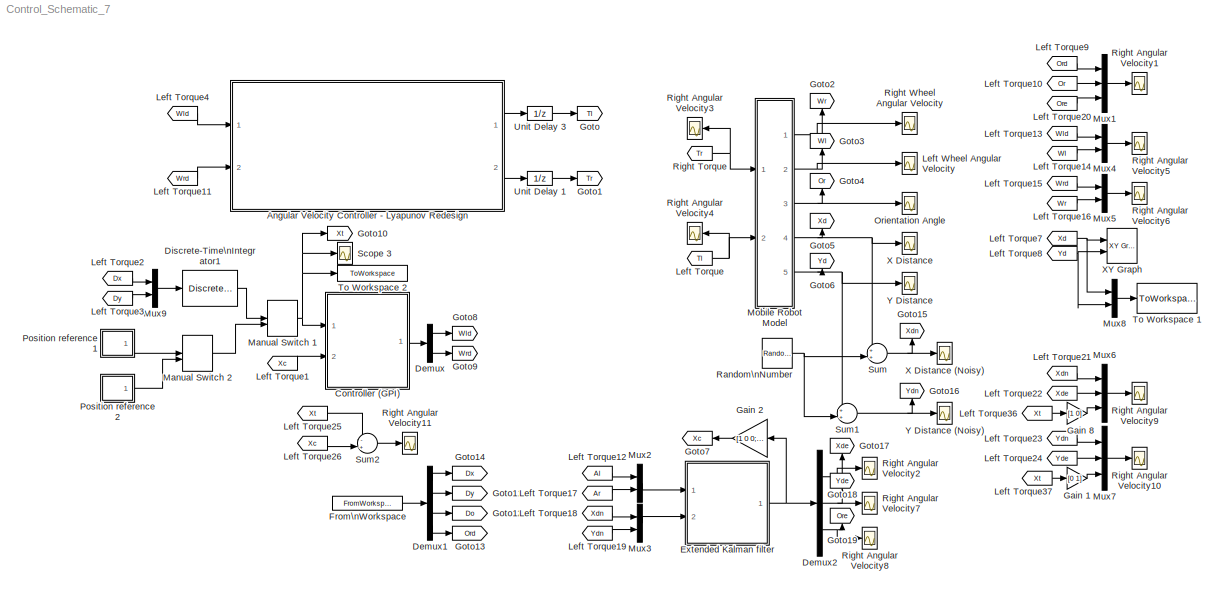
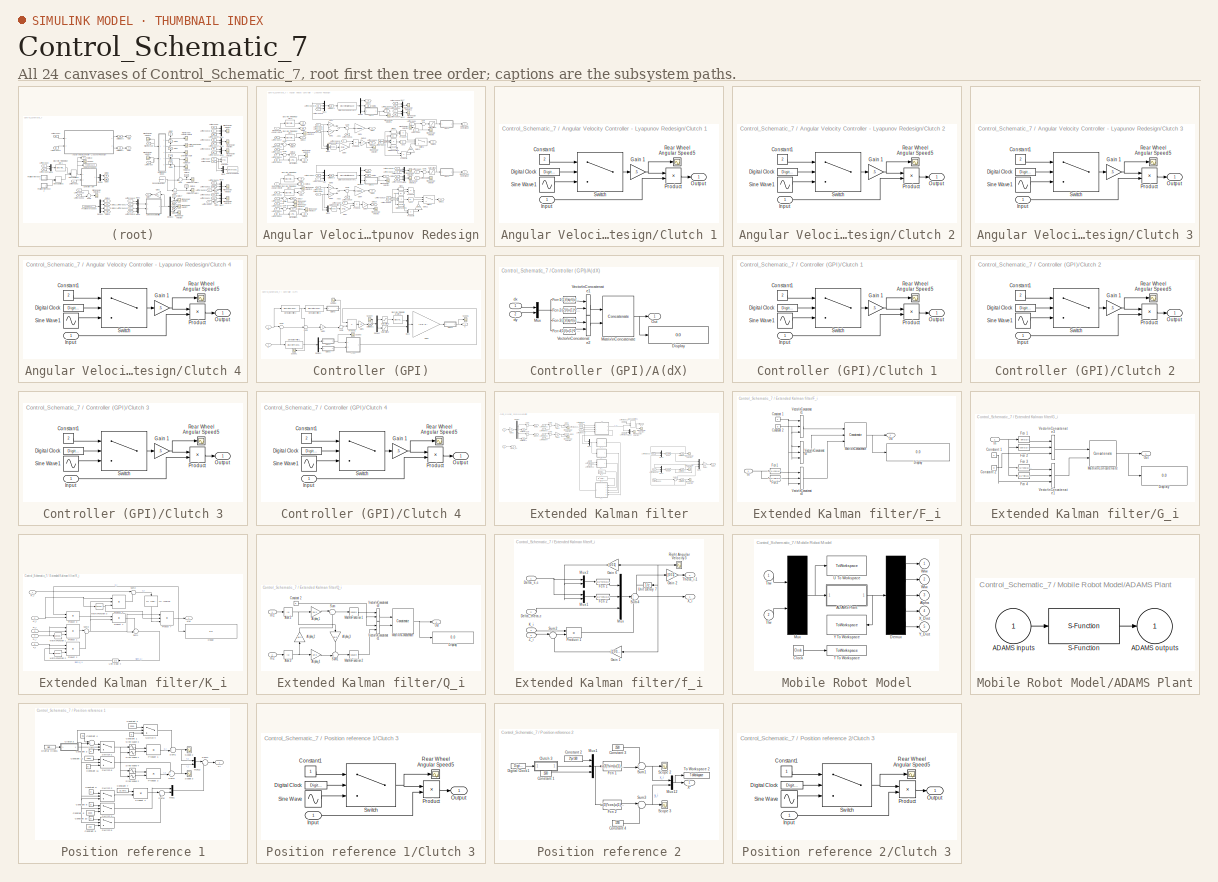
[diagram: thumbnail index - all 24 canvases of the model, root first then tree order]
MODEL Control_Schematic_7
KIND model
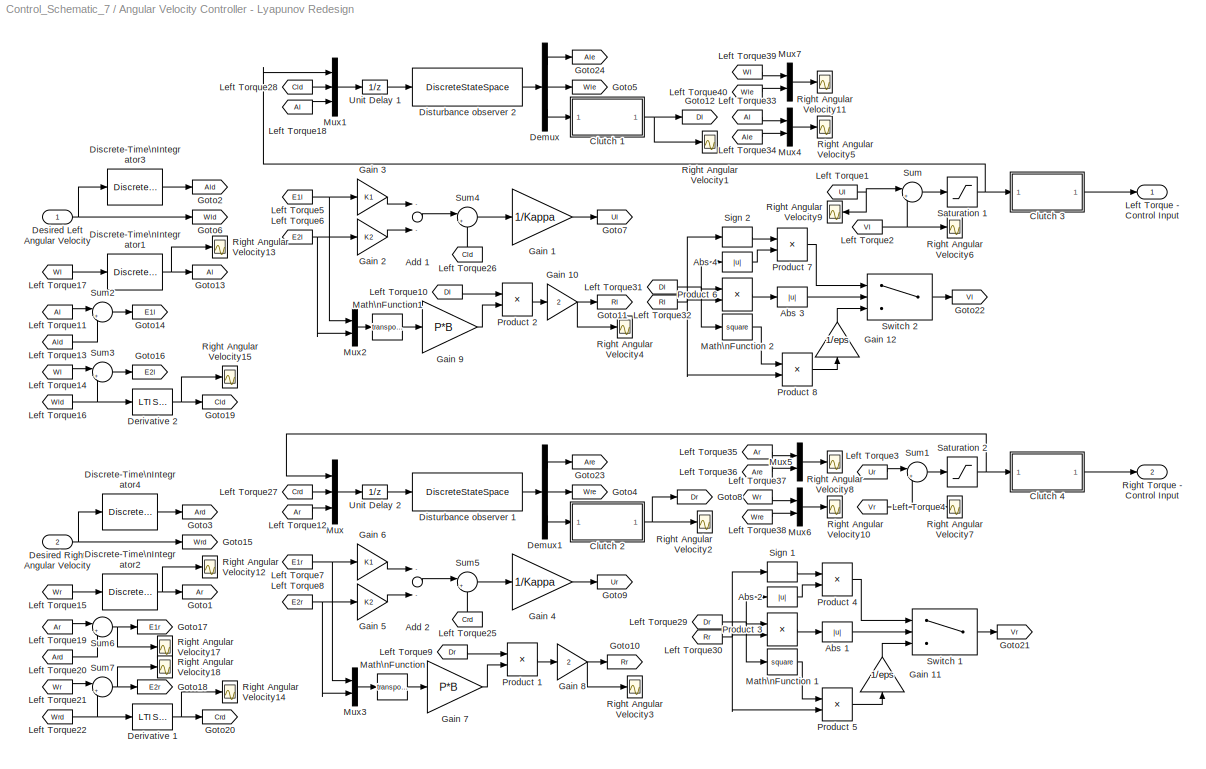
BLOCK [SubSystem] Angular Velocity Controller - Lyapunov Redesign
  Ports = [2, 2]
  RequestExecContextInheritance = off
  SID = 313
BLOCK [Abs] Angular Velocity Controller - Lyapunov Redesign/Abs 1
  SID = 1133
  SaturateOnIntegerOverflow = off
BLOCK [Abs] Angular Velocity Controller - Lyapunov Redesign/Abs 2
  SID = 1137
  SaturateOnIntegerOverflow = off
BLOCK [Abs] Angular Velocity Controller - Lyapunov Redesign/Abs 3
  SID = 1143
  SaturateOnIntegerOverflow = off
BLOCK [Abs] Angular Velocity Controller - Lyapunov Redesign/Abs 4
  SID = 1144
  SaturateOnIntegerOverflow = off
BLOCK [Sum] Angular Velocity Controller - Lyapunov Redesign/Add 1
  InputSameDT = off
  Inputs = --
  OutDataTypeStr = Inherit: Inherit via internal rule
  Ports = [2, 1]
  SID = 974
  SaturateOnIntegerOverflow = off
BLOCK [Sum] Angular Velocity Controller - Lyapunov Redesign/Add 2
  InputSameDT = off
  Inputs = --
  OutDataTypeStr = Inherit: Inherit via internal rule
  Ports = [2, 1]
  SID = 981
  SaturateOnIntegerOverflow = off
BLOCK [SubSystem] Angular Velocity Controller - Lyapunov Redesign/Clutch 1
  Ports = [1, 1]
  RequestExecContextInheritance = off
  SID = 4631
BLOCK [Constant] Angular Velocity Controller - Lyapunov Redesign/Clutch 1/Constant1
  SID = 4633
  Value = 2
BLOCK [DigitalClock] Angular Velocity Controller - Lyapunov Redesign/Clutch 1/Digital Clock
  SID = 4634
  SampleTime = Ts
BLOCK [Gain] Angular Velocity Controller - Lyapunov Redesign/Clutch 1/Gain 1
  Gain = .5
  OutDataTypeStr = Inherit: Inherit via internal rule
  ParamDataTypeStr = Inherit: Inherit via internal rule
  SID = 4635
  SaturateOnIntegerOverflow = off
BLOCK [Inport] Angular Velocity Controller - Lyapunov Redesign/Clutch 1/Input
  IconDisplay = Port number
  SID = 4632
BLOCK [Outport] Angular Velocity Controller - Lyapunov Redesign/Clutch 1/Output
  IconDisplay = Port number
  SID = 4640
BLOCK [Product] Angular Velocity Controller - Lyapunov Redesign/Clutch 1/Product
  InputSameDT = off
  OutDataTypeStr = Inherit: Inherit via internal rule
  Ports = [2, 1]
  RndMeth = Floor
  SID = 4636
  SaturateOnIntegerOverflow = off
BLOCK [Scope] Angular Velocity Controller - Lyapunov Redesign/Clutch 1/Rear Wheel Angular Speed5
  Floating = off
  LimitDataPoints = off
  NumInputPorts = 1
  Ports = [1]
  SID = 4637
  SaveName = ScopeData5
  ShowLegends = off
  YMax = 2
  YMin = 0
  ZoomMode = xonly
BLOCK [Sin] Angular Velocity Controller - Lyapunov Redesign/Clutch 1/Sine Wave1
  Bias = 1
  Frequency = (pi/5)
  Phase = -pi/2
  Ports = [0, 1]
  SID = 4638
  SampleTime = Ts
BLOCK [Switch] Angular Velocity Controller - Lyapunov Redesign/Clutch 1/Switch
  InputSameDT = off
  SID = 4639
  SaturateOnIntegerOverflow = off
  Threshold = 5
BLOCK [SubSystem] Angular Velocity Controller - Lyapunov Redesign/Clutch 2
  Ports = [1, 1]
  RequestExecContextInheritance = off
  SID = 4641
BLOCK [Constant] Angular Velocity Controller - Lyapunov Redesign/Clutch 2/Constant1
  SID = 4643
  Value = 2
BLOCK [DigitalClock] Angular Velocity Controller - Lyapunov Redesign/Clutch 2/Digital Clock
  SID = 4644
  SampleTime = Ts
BLOCK [Gain] Angular Velocity Controller - Lyapunov Redesign/Clutch 2/Gain 1
  Gain = .5
  OutDataTypeStr = Inherit: Inherit via internal rule
  ParamDataTypeStr = Inherit: Inherit via internal rule
  SID = 4645
  SaturateOnIntegerOverflow = off
BLOCK [Inport] Angular Velocity Controller - Lyapunov Redesign/Clutch 2/Input
  IconDisplay = Port number
  SID = 4642
BLOCK [Outport] Angular Velocity Controller - Lyapunov Redesign/Clutch 2/Output
  IconDisplay = Port number
  SID = 4650
BLOCK [Product] Angular Velocity Controller - Lyapunov Redesign/Clutch 2/Product
  InputSameDT = off
  OutDataTypeStr = Inherit: Inherit via internal rule
  Ports = [2, 1]
  RndMeth = Floor
  SID = 4646
  SaturateOnIntegerOverflow = off
BLOCK [Scope] Angular Velocity Controller - Lyapunov Redesign/Clutch 2/Rear Wheel Angular Speed5
  Floating = off
  LimitDataPoints = off
  NumInputPorts = 1
  Ports = [1]
  SID = 4647
  SaveName = ScopeData5
  ShowLegends = off
  YMax = 2
  YMin = 0
  ZoomMode = xonly
BLOCK [Sin] Angular Velocity Controller - Lyapunov Redesign/Clutch 2/Sine Wave1
  Bias = 1
  Frequency = (pi/5)
  Phase = -pi/2
  Ports = [0, 1]
  SID = 4648
  SampleTime = Ts
BLOCK [Switch] Angular Velocity Controller - Lyapunov Redesign/Clutch 2/Switch
  InputSameDT = off
  SID = 4649
  SaturateOnIntegerOverflow = off
  Threshold = 5
BLOCK [SubSystem] Angular Velocity Controller - Lyapunov Redesign/Clutch 3
  Ports = [1, 1]
  RequestExecContextInheritance = off
  SID = 4651
BLOCK [Constant] Angular Velocity Controller - Lyapunov Redesign/Clutch 3/Constant1
  SID = 4653
  Value = 2
BLOCK [DigitalClock] Angular Velocity Controller - Lyapunov Redesign/Clutch 3/Digital Clock
  SID = 4654
  SampleTime = Ts
BLOCK [Gain] Angular Velocity Controller - Lyapunov Redesign/Clutch 3/Gain 1
  Gain = .5
  OutDataTypeStr = Inherit: Inherit via internal rule
  ParamDataTypeStr = Inherit: Inherit via internal rule
  SID = 4655
  SaturateOnIntegerOverflow = off
BLOCK [Inport] Angular Velocity Controller - Lyapunov Redesign/Clutch 3/Input
  IconDisplay = Port number
  SID = 4652
BLOCK [Outport] Angular Velocity Controller - Lyapunov Redesign/Clutch 3/Output
  IconDisplay = Port number
  SID = 4660
BLOCK [Product] Angular Velocity Controller - Lyapunov Redesign/Clutch 3/Product
  InputSameDT = off
  OutDataTypeStr = Inherit: Inherit via internal rule
  Ports = [2, 1]
  RndMeth = Floor
  SID = 4656
  SaturateOnIntegerOverflow = off
BLOCK [Scope] Angular Velocity Controller - Lyapunov Redesign/Clutch 3/Rear Wheel Angular Speed5
  Floating = off
  LimitDataPoints = off
  NumInputPorts = 1
  Ports = [1]
  SID = 4657
  SaveName = ScopeData5
  ShowLegends = off
  YMax = 2
  YMin = 0
  ZoomMode = xonly
BLOCK [Sin] Angular Velocity Controller - Lyapunov Redesign/Clutch 3/Sine Wave1
  Bias = 1
  Frequency = (pi/1)
  Phase = -pi/2
  Ports = [0, 1]
  SID = 4658
  SampleTime = Ts
BLOCK [Switch] Angular Velocity Controller - Lyapunov Redesign/Clutch 3/Switch
  InputSameDT = off
  SID = 4659
  SaturateOnIntegerOverflow = off
  Threshold = 1
BLOCK [SubSystem] Angular Velocity Controller - Lyapunov Redesign/Clutch 4
  Ports = [1, 1]
  RequestExecContextInheritance = off
  SID = 4661
BLOCK [Constant] Angular Velocity Controller - Lyapunov Redesign/Clutch 4/Constant1
  SID = 4663
  Value = 2
BLOCK [DigitalClock] Angular Velocity Controller - Lyapunov Redesign/Clutch 4/Digital Clock
  SID = 4664
  SampleTime = Ts
BLOCK [Gain] Angular Velocity Controller - Lyapunov Redesign/Clutch 4/Gain 1
  Gain = .5
  OutDataTypeStr = Inherit: Inherit via internal rule
  ParamDataTypeStr = Inherit: Inherit via internal rule
  SID = 4665
  SaturateOnIntegerOverflow = off
BLOCK [Inport] Angular Velocity Controller - Lyapunov Redesign/Clutch 4/Input
  IconDisplay = Port number
  SID = 4662
BLOCK [Outport] Angular Velocity Controller - Lyapunov Redesign/Clutch 4/Output
  IconDisplay = Port number
  SID = 4670
BLOCK [Product] Angular Velocity Controller - Lyapunov Redesign/Clutch 4/Product
  InputSameDT = off
  OutDataTypeStr = Inherit: Inherit via internal rule
  Ports = [2, 1]
  RndMeth = Floor
  SID = 4666
  SaturateOnIntegerOverflow = off
BLOCK [Scope] Angular Velocity Controller - Lyapunov Redesign/Clutch 4/Rear Wheel Angular Speed5
  Floating = off
  LimitDataPoints = off
  NumInputPorts = 1
  Ports = [1]
  SID = 4667
  SaveName = ScopeData5
  ShowLegends = off
  YMax = 2
  YMin = 0
  ZoomMode = xonly
BLOCK [Sin] Angular Velocity Controller - Lyapunov Redesign/Clutch 4/Sine Wave1
  Bias = 1
  Frequency = (pi/1)
  Phase = -pi/2
  Ports = [0, 1]
  SID = 4668
  SampleTime = Ts
BLOCK [Switch] Angular Velocity Controller - Lyapunov Redesign/Clutch 4/Switch
  InputSameDT = off
  SID = 4669
  SaturateOnIntegerOverflow = off
  Threshold = 1
BLOCK [Demux] Angular Velocity Controller - Lyapunov Redesign/Demux
  DisplayOption = bar
  Outputs = 3
  Ports = [1, 3]
  SID = 1189
BLOCK [Demux] Angular Velocity Controller - Lyapunov Redesign/Demux1
  DisplayOption = bar
  Outputs = 3
  Ports = [1, 3]
  SID = 1190
BLOCK [Reference] Angular Velocity Controller - Lyapunov Redesign/Derivative 1  REF=cstblocks/LTI System
  IC = []
  Ports = [1, 1]
  SID = 3817
  SourceBlock = cstblocks/LTI System
  SourceType = LTI Block
  sys = Dif_Fz
BLOCK [Reference] Angular Velocity Controller - Lyapunov Redesign/Derivative 2  REF=cstblocks/LTI System
  IC = []
  Ports = [1, 1]
  SID = 3819
  SourceBlock = cstblocks/LTI System
  SourceType = LTI Block
  sys = Dif_Fz
BLOCK [Inport] Angular Velocity Controller - Lyapunov Redesign/Desired Left Angular Velocity
  IconDisplay = Port number
  SID = 314
BLOCK [Inport] Angular Velocity Controller - Lyapunov Redesign/Desired Right Angular Velocity
  IconDisplay = Port number
  Port = 2
  SID = 315
BLOCK [DiscreteIntegrator] Angular Velocity Controller - Lyapunov Redesign/Discrete-Time\nIntegrator1
  ICPrevOutput = DiscIntNeverNeededParam
  ICPrevScaledInput = DiscIntNeverNeededParam
  IntegratorMethod = Integration: Trapezoidal
  Ports = [1, 1]
  SID = 778
  SampleTime = Ts
  gainval = 1
BLOCK [DiscreteIntegrator] Angular Velocity Controller - Lyapunov Redesign/Discrete-Time\nIntegrator2
  ICPrevOutput = DiscIntNeverNeededParam
  ICPrevScaledInput = DiscIntNeverNeededParam
  IntegratorMethod = Integration: Trapezoidal
  Ports = [1, 1]
  SID = 855
  SampleTime = Ts
  gainval = 1
BLOCK [DiscreteIntegrator] Angular Velocity Controller - Lyapunov Redesign/Discrete-Time\nIntegrator3
  ICPrevOutput = DiscIntNeverNeededParam
  ICPrevScaledInput = DiscIntNeverNeededParam
  IntegratorMethod = Integration: Trapezoidal
  Ports = [1, 1]
  SID = 782
  SampleTime = Ts
  gainval = 1
BLOCK [DiscreteIntegrator] Angular Velocity Controller - Lyapunov Redesign/Discrete-Time\nIntegrator4
  ICPrevOutput = DiscIntNeverNeededParam
  ICPrevScaledInput = DiscIntNeverNeededParam
  IntegratorMethod = Integration: Trapezoidal
  Ports = [1, 1]
  SID = 783
  SampleTime = Ts
  gainval = 1
BLOCK [DiscreteStateSpace] Angular Velocity Controller - Lyapunov Redesign/Disturbance observer 1
  A = Obz.a
  B = Obz.b
  C = Obz.c
  D = Obz.d
  SID = 957
  SampleTime = Ts
BLOCK [DiscreteStateSpace] Angular Velocity Controller - Lyapunov Redesign/Disturbance observer 2
  A = Obz.a
  B = Obz.b
  C = Obz.c
  D = Obz.d
  SID = 959
  SampleTime = Ts
BLOCK [Gain] Angular Velocity Controller - Lyapunov Redesign/Gain 1
  Gain = 1/Kappa
  OutDataTypeStr = Inherit: Inherit via internal rule
  ParamDataTypeStr = Inherit: Inherit via internal rule
  SID = 975
  SaturateOnIntegerOverflow = off
BLOCK [Gain] Angular Velocity Controller - Lyapunov Redesign/Gain 10
  Gain = 2
  OutDataTypeStr = Inherit: Inherit via internal rule
  ParamDataTypeStr = Inherit: Inherit via internal rule
  SID = 1161
  SaturateOnIntegerOverflow = off
BLOCK [Gain] Angular Velocity Controller - Lyapunov Redesign/Gain 11
  Gain = 1/eps
  OutDataTypeStr = Inherit: Inherit via internal rule
  ParamDataTypeStr = Inherit: Inherit via internal rule
  SID = 1142
  SaturateOnIntegerOverflow = off
BLOCK [Gain] Angular Velocity Controller - Lyapunov Redesign/Gain 12
  Gain = 1/eps
  OutDataTypeStr = Inherit: Inherit via internal rule
  ParamDataTypeStr = Inherit: Inherit via internal rule
  SID = 1145
  SaturateOnIntegerOverflow = off
BLOCK [Gain] Angular Velocity Controller - Lyapunov Redesign/Gain 2
  Gain = K2
  OutDataTypeStr = Inherit: Inherit via internal rule
  ParamDataTypeStr = Inherit: Inherit via internal rule
  SID = 976
  SaturateOnIntegerOverflow = off
BLOCK [Gain] Angular Velocity Controller - Lyapunov Redesign/Gain 3
  Gain = K1
  OutDataTypeStr = Inherit: Inherit via internal rule
  ParamDataTypeStr = Inherit: Inherit via internal rule
  SID = 977
  SaturateOnIntegerOverflow = off
BLOCK [Gain] Angular Velocity Controller - Lyapunov Redesign/Gain 4
  Gain = 1/Kappa
  OutDataTypeStr = Inherit: Inherit via internal rule
  ParamDataTypeStr = Inherit: Inherit via internal rule
  SID = 982
  SaturateOnIntegerOverflow = off
BLOCK [Gain] Angular Velocity Controller - Lyapunov Redesign/Gain 5
  Gain = K2
  OutDataTypeStr = Inherit: Inherit via internal rule
  ParamDataTypeStr = Inherit: Inherit via internal rule
  SID = 983
  SaturateOnIntegerOverflow = off
BLOCK [Gain] Angular Velocity Controller - Lyapunov Redesign/Gain 6
  Gain = K1
  OutDataTypeStr = Inherit: Inherit via internal rule
  ParamDataTypeStr = Inherit: Inherit via internal rule
  SID = 984
  SaturateOnIntegerOverflow = off
BLOCK [Gain] Angular Velocity Controller - Lyapunov Redesign/Gain 7
  Gain = P*B
  Multiplication = Matrix(u*K)
  OutDataTypeStr = Inherit: Inherit via internal rule
  ParamDataTypeStr = Inherit: Inherit via internal rule
  SID = 1157
  SaturateOnIntegerOverflow = off
BLOCK [Gain] Angular Velocity Controller - Lyapunov Redesign/Gain 8
  Gain = 2
  OutDataTypeStr = Inherit: Inherit via internal rule
  ParamDataTypeStr = Inherit: Inherit via internal rule
  SID = 1159
  SaturateOnIntegerOverflow = off
BLOCK [Gain] Angular Velocity Controller - Lyapunov Redesign/Gain 9
  Gain = P*B
  Multiplication = Matrix(u*K)
  OutDataTypeStr = Inherit: Inherit via internal rule
  ParamDataTypeStr = Inherit: Inherit via internal rule
  SID = 1160
  SaturateOnIntegerOverflow = off
BLOCK [Goto] Angular Velocity Controller - Lyapunov Redesign/Goto1
  GotoTag = Ar
  SID = 856
  TagVisibility = global
BLOCK [Goto] Angular Velocity Controller - Lyapunov Redesign/Goto10
  GotoTag = Rr
  SID = 994
  TagVisibility = global
BLOCK [Goto] Angular Velocity Controller - Lyapunov Redesign/Goto11
  GotoTag = Rl
  SID = 997
  TagVisibility = global
BLOCK [Goto] Angular Velocity Controller - Lyapunov Redesign/Goto12
  GotoTag = Dl
  SID = 964
  TagVisibility = global
BLOCK [Goto] Angular Velocity Controller - Lyapunov Redesign/Goto13
  GotoTag = Al
  SID = 780
  TagVisibility = global
BLOCK [Goto] Angular Velocity Controller - Lyapunov Redesign/Goto14
  GotoTag = E1l
  SID = 1004
  TagVisibility = global
BLOCK [Goto] Angular Velocity Controller - Lyapunov Redesign/Goto15
  GotoTag = Wrd
  SID = 952
BLOCK [Goto] Angular Velocity Controller - Lyapunov Redesign/Goto16
  GotoTag = E2l
  SID = 1005
  TagVisibility = global
BLOCK [Goto] Angular Velocity Controller - Lyapunov Redesign/Goto17
  GotoTag = E1r
  SID = 1011
  TagVisibility = global
BLOCK [Goto] Angular Velocity Controller - Lyapunov Redesign/Goto18
  GotoTag = E2r
  SID = 1012
  TagVisibility = global
BLOCK [Goto] Angular Velocity Controller - Lyapunov Redesign/Goto19
  GotoTag = Cld
  SID = 3818
  TagVisibility = global
BLOCK [Goto] Angular Velocity Controller - Lyapunov Redesign/Goto2
  GotoTag = Ald
  SID = 784
  TagVisibility = global
BLOCK [Goto] Angular Velocity Controller - Lyapunov Redesign/Goto20
  GotoTag = Crd
  SID = 3820
  TagVisibility = global
BLOCK [Goto] Angular Velocity Controller - Lyapunov Redesign/Goto21
  GotoTag = Vr
  SID = 1136
  TagVisibility = global
BLOCK [Goto] Angular Velocity Controller - Lyapunov Redesign/Goto22
  GotoTag = Vl
  SID = 1146
  TagVisibility = global
BLOCK [Goto] Angular Velocity Controller - Lyapunov Redesign/Goto23
  GotoTag = Are
  SID = 1191
  TagVisibility = global
BLOCK [Goto] Angular Velocity Controller - Lyapunov Redesign/Goto24
  GotoTag = Ale
  SID = 1192
  TagVisibility = global
BLOCK [Goto] Angular Velocity Controller - Lyapunov Redesign/Goto3
  GotoTag = Ard
  SID = 785
  TagVisibility = global
BLOCK [Goto] Angular Velocity Controller - Lyapunov Redesign/Goto4
  GotoTag = Wre
  SID = 1568
  TagVisibility = global
BLOCK [Goto] Angular Velocity Controller - Lyapunov Redesign/Goto5
  GotoTag = Wle
  SID = 1569
  TagVisibility = global
BLOCK [Goto] Angular Velocity Controller - Lyapunov Redesign/Goto6
  GotoTag = Wld
  SID = 953
BLOCK [Goto] Angular Velocity Controller - Lyapunov Redesign/Goto7
  GotoTag = Ul
  SID = 980
  TagVisibility = global
BLOCK [Goto] Angular Velocity Controller - Lyapunov Redesign/Goto8
  GotoTag = Dr
  SID = 962
  TagVisibility = global
BLOCK [Goto] Angular Velocity Controller - Lyapunov Redesign/Goto9
  GotoTag = Ur
  SID = 985
  TagVisibility = global
BLOCK [Outport] Angular Velocity Controller - Lyapunov Redesign/Left Torque - Control Input
  IconDisplay = Port number
  SID = 317
BLOCK [From] Angular Velocity Controller - Lyapunov Redesign/Left Torque1
  GotoTag = Ul
  SID = 969
  TagVisibility = global
BLOCK [From] Angular Velocity Controller - Lyapunov Redesign/Left Torque10
  GotoTag = Dl
  SID = 998
  TagVisibility = global
BLOCK [From] Angular Velocity Controller - Lyapunov Redesign/Left Torque11
  GotoTag = Al
  SID = 1001
  TagVisibility = global
BLOCK [From] Angular Velocity Controller - Lyapunov Redesign/Left Torque12
  GotoTag = Ar
  SID = 961
  TagVisibility = global
BLOCK [From] Angular Velocity Controller - Lyapunov Redesign/Left Torque13
  GotoTag = Ald
  SID = 1002
  TagVisibility = global
BLOCK [From] Angular Velocity Controller - Lyapunov Redesign/Left Torque14
  GotoTag = Wl
  SID = 1006
  TagVisibility = global
BLOCK [From] Angular Velocity Controller - Lyapunov Redesign/Left Torque15
  GotoTag = Wr
  SID = 955
  TagVisibility = global
BLOCK [From] Angular Velocity Controller - Lyapunov Redesign/Left Torque16
  GotoTag = Wld
  SID = 1007
BLOCK [From] Angular Velocity Controller - Lyapunov Redesign/Left Torque17
  GotoTag = Wl
  SID = 954
  TagVisibility = global
BLOCK [From] Angular Velocity Controller - Lyapunov Redesign/Left Torque18
  GotoTag = Al
  SID = 963
  TagVisibility = global
BLOCK [From] Angular Velocity Controller - Lyapunov Redesign/Left Torque19
  GotoTag = Ar
  SID = 1013
  TagVisibility = global
BLOCK [From] Angular Velocity Controller - Lyapunov Redesign/Left Torque2
  GotoTag = Vl
  SID = 970
  TagVisibility = global
BLOCK [From] Angular Velocity Controller - Lyapunov Redesign/Left Torque20
  GotoTag = Ard
  SID = 1014
  TagVisibility = global
BLOCK [From] Angular Velocity Controller - Lyapunov Redesign/Left Torque21
  GotoTag = Wr
  SID = 1015
  TagVisibility = global
BLOCK [From] Angular Velocity Controller - Lyapunov Redesign/Left Torque22
  GotoTag = Wrd
  SID = 1016
BLOCK [From] Angular Velocity Controller - Lyapunov Redesign/Left Torque25
  GotoTag = Crd
  SID = 3821
  TagVisibility = global
BLOCK [From] Angular Velocity Controller - Lyapunov Redesign/Left Torque26
  GotoTag = Cld
  SID = 3823
  TagVisibility = global
BLOCK [From] Angular Velocity Controller - Lyapunov Redesign/Left Torque27
  GotoTag = Crd
  SID = 1127
  TagVisibility = global
BLOCK [From] Angular Velocity Controller - Lyapunov Redesign/Left Torque28
  GotoTag = Cld
  SID = 1128
  TagVisibility = global
BLOCK [From] Angular Velocity Controller - Lyapunov Redesign/Left Torque29
  GotoTag = Dr
  SID = 1131
  TagVisibility = global
BLOCK [From] Angular Velocity Controller - Lyapunov Redesign/Left Torque3
  GotoTag = Ur
  SID = 971
  TagVisibility = global
BLOCK [From] Angular Velocity Controller - Lyapunov Redesign/Left Torque30
  GotoTag = Rr
  SID = 1132
  TagVisibility = global
BLOCK [From] Angular Velocity Controller - Lyapunov Redesign/Left Torque31
  GotoTag = Dl
  SID = 1147
  TagVisibility = global
BLOCK [From] Angular Velocity Controller - Lyapunov Redesign/Left Torque32
  GotoTag = Rl
  SID = 1148
  TagVisibility = global
BLOCK [From] Angular Velocity Controller - Lyapunov Redesign/Left Torque33
  GotoTag = Al
  SID = 1193
  TagVisibility = global
BLOCK [From] Angular Velocity Controller - Lyapunov Redesign/Left Torque34
  GotoTag = Ale
  SID = 1194
  TagVisibility = global
BLOCK [From] Angular Velocity Controller - Lyapunov Redesign/Left Torque35
  GotoTag = Ar
  SID = 1527
  TagVisibility = global
BLOCK [From] Angular Velocity Controller - Lyapunov Redesign/Left Torque36
  GotoTag = Are
  SID = 1528
  TagVisibility = global
BLOCK [From] Angular Velocity Controller - Lyapunov Redesign/Left Torque37
  GotoTag = Wr
  SID = 1570
  TagVisibility = global
BLOCK [From] Angular Velocity Controller - Lyapunov Redesign/Left Torque38
  GotoTag = Wre
  SID = 1571
  TagVisibility = global
BLOCK [From] Angular Velocity Controller - Lyapunov Redesign/Left Torque39
  GotoTag = Wl
  SID = 2024
  TagVisibility = global
BLOCK [From] Angular Velocity Controller - Lyapunov Redesign/Left Torque4
  GotoTag = Vr
  SID = 972
  TagVisibility = global
BLOCK [From] Angular Velocity Controller - Lyapunov Redesign/Left Torque40
  GotoTag = Wle
  SID = 2025
  TagVisibility = global
BLOCK [From] Angular Velocity Controller - Lyapunov Redesign/Left Torque5
  GotoTag = E1l
  SID = 978
  TagVisibility = global
BLOCK [From] Angular Velocity Controller - Lyapunov Redesign/Left Torque6
  GotoTag = E2l
  SID = 979
  TagVisibility = global
BLOCK [From] Angular Velocity Controller - Lyapunov Redesign/Left Torque7
  GotoTag = E1r
  SID = 986
  TagVisibility = global
BLOCK [From] Angular Velocity Controller - Lyapunov Redesign/Left Torque8
  GotoTag = E2r
  SID = 987
  TagVisibility = global
BLOCK [From] Angular Velocity Controller - Lyapunov Redesign/Left Torque9
  GotoTag = Dr
  SID = 990
  TagVisibility = global
BLOCK [Math] Angular Velocity Controller - Lyapunov Redesign/Math\nFunction
  Operator = transpose
  Ports = [1, 1]
  SID = 1155
BLOCK [Math] Angular Velocity Controller - Lyapunov Redesign/Math\nFunction 1
  Operator = square
  Ports = [1, 1]
  SID = 1140
BLOCK [Math] Angular Velocity Controller - Lyapunov Redesign/Math\nFunction 2
  Operator = square
  Ports = [1, 1]
  SID = 1149
BLOCK [Math] Angular Velocity Controller - Lyapunov Redesign/Math\nFunction1
  Operator = transpose
  Ports = [1, 1]
  SID = 1163
BLOCK [Mux] Angular Velocity Controller - Lyapunov Redesign/Mux
  DisplayOption = bar
  Inputs = 3
  Ports = [3, 1]
  SID = 958
BLOCK [Mux] Angular Velocity Controller - Lyapunov Redesign/Mux1
  DisplayOption = bar
  Inputs = 3
  Ports = [3, 1]
  SID = 960
BLOCK [Mux] Angular Velocity Controller - Lyapunov Redesign/Mux2
  DisplayOption = bar
  Inputs = 2
  Ports = [2, 1]
  SID = 999
BLOCK [Mux] Angular Velocity Controller - Lyapunov Redesign/Mux3
  DisplayOption = bar
  Inputs = 2
  Ports = [2, 1]
  SID = 989
BLOCK [Mux] Angular Velocity Controller - Lyapunov Redesign/Mux4
  DisplayOption = bar
  Inputs = 2
  Ports = [2, 1]
  SID = 1195
BLOCK [Mux] Angular Velocity Controller - Lyapunov Redesign/Mux5
  DisplayOption = bar
  Inputs = 2
  Ports = [2, 1]
  SID = 1529
BLOCK [Mux] Angular Velocity Controller - Lyapunov Redesign/Mux6
  DisplayOption = bar
  Inputs = 2
  Ports = [2, 1]
  SID = 1572
BLOCK [Mux] Angular Velocity Controller - Lyapunov Redesign/Mux7
  DisplayOption = bar
  Inputs = 2
  Ports = [2, 1]
  SID = 2026
BLOCK [Product] Angular Velocity Controller - Lyapunov Redesign/Product 1
  InputSameDT = off
  OutDataTypeStr = Inherit: Inherit via internal rule
  Ports = [2, 1]
  RndMeth = Floor
  SID = 1156
  SaturateOnIntegerOverflow = off
BLOCK [Product] Angular Velocity Controller - Lyapunov Redesign/Product 2
  InputSameDT = off
  OutDataTypeStr = Inherit: Inherit via internal rule
  Ports = [2, 1]
  RndMeth = Floor
  SID = 1164
  SaturateOnIntegerOverflow = off
BLOCK [Product] Angular Velocity Controller - Lyapunov Redesign/Product 3
  InputSameDT = off
  OutDataTypeStr = Inherit: Inherit via internal rule
  Ports = [2, 1]
  RndMeth = Floor
  SID = 1130
  SaturateOnIntegerOverflow = off
BLOCK [Product] Angular Velocity Controller - Lyapunov Redesign/Product 4
  InputSameDT = off
  OutDataTypeStr = Inherit: Inherit via internal rule
  Ports = [2, 1]
  RndMeth = Floor
  SID = 1139
  SaturateOnIntegerOverflow = off
BLOCK [Product] Angular Velocity Controller - Lyapunov Redesign/Product 5
  InputSameDT = off
  OutDataTypeStr = Inherit: Inherit via internal rule
  Ports = [2, 1]
  RndMeth = Floor
  SID = 1141
  SaturateOnIntegerOverflow = off
BLOCK [Product] Angular Velocity Controller - Lyapunov Redesign/Product 6
  InputSameDT = off
  OutDataTypeStr = Inherit: Inherit via internal rule
  Ports = [2, 1]
  RndMeth = Floor
  SID = 1150
  SaturateOnIntegerOverflow = off
BLOCK [Product] Angular Velocity Controller - Lyapunov Redesign/Product 7
  InputSameDT = off
  OutDataTypeStr = Inherit: Inherit via internal rule
  Ports = [2, 1]
  RndMeth = Floor
  SID = 1151
  SaturateOnIntegerOverflow = off
BLOCK [Product] Angular Velocity Controller - Lyapunov Redesign/Product 8
  InputSameDT = off
  OutDataTypeStr = Inherit: Inherit via internal rule
  Ports = [2, 1]
  RndMeth = Floor
  SID = 1152
  SaturateOnIntegerOverflow = off
BLOCK [Scope] Angular Velocity Controller - Lyapunov Redesign/Right Angular Velocity1
  Floating = off
  LimitDataPoints = off
  NumInputPorts = 1
  Ports = [1]
  SID = 1167
  SaveName = ScopeData5
  ShowLegends = off
  YMax = 3000
  YMin = -3000
BLOCK [Scope] Angular Velocity Controller - Lyapunov Redesign/Right Angular Velocity10
  Floating = off
  LimitDataPoints = off
  NumInputPorts = 1
  Ports = [1]
  SID = 1573
  SaveName = ScopeData18
  ShowLegends = off
  YMax = 1
  YMin = -1
  ZoomMode = xonly
BLOCK [Scope] Angular Velocity Controller - Lyapunov Redesign/Right Angular Velocity11
  Floating = off
  LimitDataPoints = off
  NumInputPorts = 1
  Ports = [1]
  SID = 2027
  SaveName = ScopeData38
  ShowLegends = off
  YMax = 1
  YMin = -1
BLOCK [Scope] Angular Velocity Controller - Lyapunov Redesign/Right Angular Velocity12
  Floating = off
  LimitDataPoints = off
  NumInputPorts = 1
  Ports = [1]
  SID = 2030
  SaveName = ScopeData39
  ShowLegends = off
  YMax = 30
  YMin = -3
BLOCK [Scope] Angular Velocity Controller - Lyapunov Redesign/Right Angular Velocity13
  Floating = off
  LimitDataPoints = off
  NumInputPorts = 1
  Ports = [1]
  SID = 2031
  SaveName = ScopeData40
  ShowLegends = off
  YMax = 3
  YMin = -3
BLOCK [Scope] Angular Velocity Controller - Lyapunov Redesign/Right Angular Velocity14
  Floating = off
  LimitDataPoints = off
  NumInputPorts = 1
  Ports = [1]
  SID = 3825
  SaveName = ScopeData42
  ShowLegends = off
  YMax = 1
  YMin = -1
BLOCK [Scope] Angular Velocity Controller - Lyapunov Redesign/Right Angular Velocity15
  Floating = off
  LimitDataPoints = off
  NumInputPorts = 1
  Ports = [1]
  SID = 3826
  SaveName = ScopeData43
  ShowLegends = off
  YMax = 1
  YMin = -1
BLOCK [Scope] Angular Velocity Controller - Lyapunov Redesign/Right Angular Velocity17
  Floating = off
  LimitDataPoints = off
  NumInputPorts = 1
  Ports = [1]
  SID = 3882
  SaveName = ScopeData45
  ShowLegends = off
  YMax = 1
  YMin = -1
BLOCK [Scope] Angular Velocity Controller - Lyapunov Redesign/Right Angular Velocity18
  Floating = off
  LimitDataPoints = off
  NumInputPorts = 1
  Ports = [1]
  SID = 3883
  SaveName = ScopeData46
  ShowLegends = off
  YMax = 1
  YMin = -1
  ZoomMode = xonly
BLOCK [Scope] Angular Velocity Controller - Lyapunov Redesign/Right Angular Velocity2
  Floating = off
  LimitDataPoints = off
  NumInputPorts = 1
  Ports = [1]
  SID = 1168
  SaveName = ScopeData6
  ShowLegends = off
  YMax = 800
  YMin = -800
  ZoomMode = xonly
BLOCK [Scope] Angular Velocity Controller - Lyapunov Redesign/Right Angular Velocity3
  Floating = off
  LimitDataPoints = off
  NumInputPorts = 1
  Ports = [1]
  SID = 1169
  SaveName = ScopeData11
  ShowLegends = off
  YMax = 3
  YMin = -3
BLOCK [Scope] Angular Velocity Controller - Lyapunov Redesign/Right Angular Velocity4
  Floating = off
  LimitDataPoints = off
  NumInputPorts = 1
  Ports = [1]
  SID = 1170
  SaveName = ScopeData12
  ShowLegends = off
  YMax = 3
  YMin = -3
BLOCK [Scope] Angular Velocity Controller - Lyapunov Redesign/Right Angular Velocity5
  Floating = off
  LimitDataPoints = off
  NumInputPorts = 1
  Ports = [1]
  SID = 1196
  SaveName = ScopeData13
  ShowLegends = off
  YMax = 1
  YMin = -1
  ZoomMode = yonly
BLOCK [Scope] Angular Velocity Controller - Lyapunov Redesign/Right Angular Velocity6
  Floating = off
  LimitDataPoints = off
  NumInputPorts = 1
  Ports = [1]
  SID = 1199
  SaveName = ScopeData14
  ShowLegends = off
  YMax = 3
  YMin = -3
BLOCK [Scope] Angular Velocity Controller - Lyapunov Redesign/Right Angular Velocity7
  Floating = off
  LimitDataPoints = off
  NumInputPorts = 1
  Ports = [1]
  SID = 1200
  SaveName = ScopeData15
  ShowLegends = off
  YMax = 3
  YMin = -3
BLOCK [Scope] Angular Velocity Controller - Lyapunov Redesign/Right Angular Velocity8
  Floating = off
  LimitDataPoints = off
  NumInputPorts = 1
  Ports = [1]
  SID = 1530
  SaveName = ScopeData16
  ShowLegends = off
  YMax = 1
  YMin = -1
  ZoomMode = yonly
BLOCK [Scope] Angular Velocity Controller - Lyapunov Redesign/Right Angular Velocity9
  Floating = off
  LimitDataPoints = off
  NumInputPorts = 1
  Ports = [1]
  SID = 1567
  SaveName = ScopeData17
  ShowLegends = off
  YMax = 3
  YMin = -3
BLOCK [Outport] Angular Velocity Controller - Lyapunov Redesign/Right Torque - Control Input
  IconDisplay = Port number
  Port = 2
  SID = 319
BLOCK [Saturate] Angular Velocity Controller - Lyapunov Redesign/Saturation 1
  InputPortMap = u0
  LowerLimit = -20
  Ports = [1, 1]
  SID = 942
  UpperLimit = 20
BLOCK [Saturate] Angular Velocity Controller - Lyapunov Redesign/Saturation 2
  InputPortMap = u0
  LowerLimit = -20
  Ports = [1, 1]
  SID = 943
  UpperLimit = 20
BLOCK [Signum] Angular Velocity Controller - Lyapunov Redesign/Sign 1
  SID = 1138
BLOCK [Signum] Angular Velocity Controller - Lyapunov Redesign/Sign 2
  SID = 1153
BLOCK [Sum] Angular Velocity Controller - Lyapunov Redesign/Sum
  IconShape = round
  InputSameDT = off
  Inputs = |+-
  OutDataTypeStr = Inherit: Inherit via internal rule
  Ports = [2, 1]
  SID = 967
  SaturateOnIntegerOverflow = off
BLOCK [Sum] Angular Velocity Controller - Lyapunov Redesign/Sum1
  IconShape = round
  InputSameDT = off
  Inputs = |+-
  OutDataTypeStr = Inherit: Inherit via internal rule
  Ports = [2, 1]
  SID = 968
  SaturateOnIntegerOverflow = off
BLOCK [Sum] Angular Velocity Controller - Lyapunov Redesign/Sum2
  IconShape = round
  InputSameDT = off
  Inputs = |+-
  OutDataTypeStr = Inherit: Inherit via internal rule
  Ports = [2, 1]
  SID = 1003
  SaturateOnIntegerOverflow = off
BLOCK [Sum] Angular Velocity Controller - Lyapunov Redesign/Sum3
  IconShape = round
  InputSameDT = off
  Inputs = |+-
  OutDataTypeStr = Inherit: Inherit via internal rule
  Ports = [2, 1]
  SID = 1008
  SaturateOnIntegerOverflow = off
BLOCK [Sum] Angular Velocity Controller - Lyapunov Redesign/Sum4
  IconShape = round
  InputSameDT = off
  Inputs = |++
  OutDataTypeStr = Inherit: Inherit via internal rule
  Ports = [2, 1]
  SID = 3824
  SaturateOnIntegerOverflow = off
BLOCK [Sum] Angular Velocity Controller - Lyapunov Redesign/Sum5
  IconShape = round
  InputSameDT = off
  Inputs = |++
  OutDataTypeStr = Inherit: Inherit via internal rule
  Ports = [2, 1]
  SID = 3822
  SaturateOnIntegerOverflow = off
BLOCK [Sum] Angular Velocity Controller - Lyapunov Redesign/Sum6
  IconShape = round
  InputSameDT = off
  Inputs = |+-
  OutDataTypeStr = Inherit: Inherit via internal rule
  Ports = [2, 1]
  SID = 1017
  SaturateOnIntegerOverflow = off
BLOCK [Sum] Angular Velocity Controller - Lyapunov Redesign/Sum7
  IconShape = round
  InputSameDT = off
  Inputs = |+-
  OutDataTypeStr = Inherit: Inherit via internal rule
  Ports = [2, 1]
  SID = 1018
  SaturateOnIntegerOverflow = off
BLOCK [Switch] Angular Velocity Controller - Lyapunov Redesign/Switch 1
  InputSameDT = off
  SID = 1135
  SaturateOnIntegerOverflow = off
  Threshold = eps
BLOCK [Switch] Angular Velocity Controller - Lyapunov Redesign/Switch 2
  InputSameDT = off
  SID = 1154
  SaturateOnIntegerOverflow = off
  Threshold = eps
BLOCK [UnitDelay] Angular Velocity Controller - Lyapunov Redesign/Unit Delay 1
  InputProcessing = Elements as channels (sample based)
  SID = 1165
  SampleTime = -1
BLOCK [UnitDelay] Angular Velocity Controller - Lyapunov Redesign/Unit Delay 2
  InputProcessing = Elements as channels (sample based)
  SID = 1166
  SampleTime = -1
BLOCK [SubSystem] Controller (GPI)
  Ports = [2, 1]
  RequestExecContextInheritance = off
  SID = 4282
BLOCK [SubSystem] Controller (GPI)/A(dX)
  Ports = [2, 1]
  RequestExecContextInheritance = off
  SID = 4285
BLOCK [Display] Controller (GPI)/A(dX)/Display
  Decimation = 1
  Ports = [1]
  SID = 4288
BLOCK [Fcn] Controller (GPI)/A(dX)/Fcn 1
  Expr = u(1)/(sqrt(u(1)^2 + u(2)^2))
  SID = 4289
BLOCK [Fcn] Controller (GPI)/A(dX)/Fcn 2
  Expr = -u(2)/(u(1)^2 + u(2)^2)
  SID = 4290
BLOCK [Fcn] Controller (GPI)/A(dX)/Fcn 3
  Expr = u(2)/(sqrt(u(1)^2 + u(2)^2))
  SID = 4291
BLOCK [Fcn] Controller (GPI)/A(dX)/Fcn 4
  Expr = u(1)/(u(1)^2 + u(2)^2)
  SID = 4292
BLOCK [Concatenate] Controller (GPI)/A(dX)/Matrix\nConcatenate
  ConcatenateDimension = 2
  Mode = Multidimensional array
  Ports = [2, 1]
  SID = 4293
BLOCK [Mux] Controller (GPI)/A(dX)/Mux
  DisplayOption = bar
  Inputs = 2
  Ports = [2, 1]
  SID = 4294
BLOCK [Outport] Controller (GPI)/A(dX)/Out
  IconDisplay = Port number
  SID = 4297
BLOCK [Concatenate] Controller (GPI)/A(dX)/Vector\nConcatenate1
  Ports = [2, 1]
  SID = 4295
BLOCK [Concatenate] Controller (GPI)/A(dX)/Vector\nConcatenate2
  Ports = [2, 1]
  SID = 4296
BLOCK [Inport] Controller (GPI)/A(dX)/dx
  IconDisplay = Port number
  SID = 4286
BLOCK [Inport] Controller (GPI)/A(dX)/dy
  IconDisplay = Port number
  Port = 2
  SID = 4287
BLOCK [SubSystem] Controller (GPI)/Clutch 1
  Ports = [1, 1]
  RequestExecContextInheritance = off
  SID = 4591
BLOCK [Constant] Controller (GPI)/Clutch 1/Constant1
  SID = 4593
  Value = 2
BLOCK [DigitalClock] Controller (GPI)/Clutch 1/Digital Clock
  SID = 4594
  SampleTime = Ts
BLOCK [Gain] Controller (GPI)/Clutch 1/Gain 1
  Gain = .5
  OutDataTypeStr = Inherit: Inherit via internal rule
  ParamDataTypeStr = Inherit: Inherit via internal rule
  SID = 4595
  SaturateOnIntegerOverflow = off
BLOCK [Inport] Controller (GPI)/Clutch 1/Input
  IconDisplay = Port number
  SID = 4592
BLOCK [Outport] Controller (GPI)/Clutch 1/Output
  IconDisplay = Port number
  SID = 4600
BLOCK [Product] Controller (GPI)/Clutch 1/Product
  InputSameDT = off
  OutDataTypeStr = Inherit: Inherit via internal rule
  Ports = [2, 1]
  RndMeth = Floor
  SID = 4596
  SaturateOnIntegerOverflow = off
BLOCK [Scope] Controller (GPI)/Clutch 1/Rear Wheel Angular Speed5
  Floating = off
  LimitDataPoints = off
  NumInputPorts = 1
  Ports = [1]
  SID = 4597
  SaveName = ScopeData5
  ShowLegends = off
  YMax = 2
  YMin = 0
  ZoomMode = xonly
BLOCK [Sin] Controller (GPI)/Clutch 1/Sine Wave1
  Bias = 1
  Frequency = (pi/20)
  Phase = -pi/2
  Ports = [0, 1]
  SID = 4598
  SampleTime = Ts
BLOCK [Switch] Controller (GPI)/Clutch 1/Switch
  InputSameDT = off
  SID = 4599
  SaturateOnIntegerOverflow = off
  Threshold = 20
BLOCK [SubSystem] Controller (GPI)/Clutch 2
  Ports = [1, 1]
  RequestExecContextInheritance = off
  SID = 4601
BLOCK [Constant] Controller (GPI)/Clutch 2/Constant1
  SID = 4603
  Value = 2
BLOCK [DigitalClock] Controller (GPI)/Clutch 2/Digital Clock
  SID = 4604
  SampleTime = Ts
BLOCK [Gain] Controller (GPI)/Clutch 2/Gain 1
  Gain = .5
  OutDataTypeStr = Inherit: Inherit via internal rule
  ParamDataTypeStr = Inherit: Inherit via internal rule
  SID = 4605
  SaturateOnIntegerOverflow = off
BLOCK [Inport] Controller (GPI)/Clutch 2/Input
  IconDisplay = Port number
  SID = 4602
BLOCK [Outport] Controller (GPI)/Clutch 2/Output
  IconDisplay = Port number
  SID = 4610
BLOCK [Product] Controller (GPI)/Clutch 2/Product
  InputSameDT = off
  OutDataTypeStr = Inherit: Inherit via internal rule
  Ports = [2, 1]
  RndMeth = Floor
  SID = 4606
  SaturateOnIntegerOverflow = off
BLOCK [Scope] Controller (GPI)/Clutch 2/Rear Wheel Angular Speed5
  Floating = off
  LimitDataPoints = off
  NumInputPorts = 1
  Ports = [1]
  SID = 4607
  SaveName = ScopeData5
  ShowLegends = off
  YMax = 2
  YMin = 0
  ZoomMode = xonly
BLOCK [Sin] Controller (GPI)/Clutch 2/Sine Wave1
  Bias = 1
  Frequency = (pi/20)
  Phase = -pi/2
  Ports = [0, 1]
  SID = 4608
  SampleTime = Ts
BLOCK [Switch] Controller (GPI)/Clutch 2/Switch
  InputSameDT = off
  SID = 4609
  SaturateOnIntegerOverflow = off
  Threshold = 20
BLOCK [SubSystem] Controller (GPI)/Clutch 3
  Ports = [1, 1]
  RequestExecContextInheritance = off
  SID = 4611
BLOCK [Constant] Controller (GPI)/Clutch 3/Constant1
  SID = 4613
  Value = 2
BLOCK [DigitalClock] Controller (GPI)/Clutch 3/Digital Clock
  SID = 4614
  SampleTime = Ts
BLOCK [Gain] Controller (GPI)/Clutch 3/Gain 1
  Gain = .5
  OutDataTypeStr = Inherit: Inherit via internal rule
  ParamDataTypeStr = Inherit: Inherit via internal rule
  SID = 4615
  SaturateOnIntegerOverflow = off
BLOCK [Inport] Controller (GPI)/Clutch 3/Input
  IconDisplay = Port number
  SID = 4612
BLOCK [Outport] Controller (GPI)/Clutch 3/Output
  IconDisplay = Port number
  SID = 4620
BLOCK [Product] Controller (GPI)/Clutch 3/Product
  InputSameDT = off
  OutDataTypeStr = Inherit: Inherit via internal rule
  Ports = [2, 1]
  RndMeth = Floor
  SID = 4616
  SaturateOnIntegerOverflow = off
BLOCK [Scope] Controller (GPI)/Clutch 3/Rear Wheel Angular Speed5
  Floating = off
  LimitDataPoints = off
  NumInputPorts = 1
  Ports = [1]
  SID = 4617
  SaveName = ScopeData5
  ShowLegends = off
  YMax = 2
  YMin = 0
  ZoomMode = xonly
BLOCK [Sin] Controller (GPI)/Clutch 3/Sine Wave1
  Bias = 1
  Frequency = (pi/20)
  Phase = -pi/2
  Ports = [0, 1]
  SID = 4618
  SampleTime = Ts
BLOCK [Switch] Controller (GPI)/Clutch 3/Switch
  InputSameDT = off
  SID = 4619
  SaturateOnIntegerOverflow = off
  Threshold = 20
BLOCK [SubSystem] Controller (GPI)/Clutch 4
  Ports = [1, 1]
  RequestExecContextInheritance = off
  SID = 4621
BLOCK [Constant] Controller (GPI)/Clutch 4/Constant1
  SID = 4623
  Value = 2
BLOCK [DigitalClock] Controller (GPI)/Clutch 4/Digital Clock
  SID = 4624
  SampleTime = Ts
BLOCK [Gain] Controller (GPI)/Clutch 4/Gain 1
  Gain = .5
  OutDataTypeStr = Inherit: Inherit via internal rule
  ParamDataTypeStr = Inherit: Inherit via internal rule
  SID = 4625
  SaturateOnIntegerOverflow = off
BLOCK [Inport] Controller (GPI)/Clutch 4/Input
  IconDisplay = Port number
  SID = 4622
BLOCK [Outport] Controller (GPI)/Clutch 4/Output
  IconDisplay = Port number
  SID = 4630
BLOCK [Product] Controller (GPI)/Clutch 4/Product
  InputSameDT = off
  OutDataTypeStr = Inherit: Inherit via internal rule
  Ports = [2, 1]
  RndMeth = Floor
  SID = 4626
  SaturateOnIntegerOverflow = off
BLOCK [Scope] Controller (GPI)/Clutch 4/Rear Wheel Angular Speed5
  Floating = off
  LimitDataPoints = off
  NumInputPorts = 1
  Ports = [1]
  SID = 4627
  SaveName = ScopeData5
  ShowLegends = off
  YMax = 2
  YMin = 0
  ZoomMode = xonly
BLOCK [Sin] Controller (GPI)/Clutch 4/Sine Wave1
  Bias = 1
  Frequency = (pi/20)
  Phase = -pi/2
  Ports = [0, 1]
  SID = 4628
  SampleTime = Ts
BLOCK [Switch] Controller (GPI)/Clutch 4/Switch
  InputSameDT = off
  SID = 4629
  SaturateOnIntegerOverflow = off
  Threshold = 20
BLOCK [Demux] Controller (GPI)/Demux1
  DisplayOption = bar
  Outputs = 2
  Ports = [1, 2]
  SID = 4325
BLOCK [Demux] Controller (GPI)/Demux2
  DisplayOption = bar
  Outputs = 2
  Ports = [1, 2]
  SID = 4326
BLOCK [DiscreteTransferFcn] Controller (GPI)/Derivative + Filter 1
  Denominator = [1,-1.982, .9822]
  InputPortMap = u0
  Numerator = [.04014,0,-.04014]
  Ports = [1, 1]
  SID = 4327
  SampleTime = Ts
BLOCK [DiscreteTransferFcn] Controller (GPI)/Derivative + Filter 2
  Denominator = [1,-1.982, .9822]
  InitialStates = [.01 .01]'
  InputPortMap = u0
  Numerator = [.04014,0,-.04014]
  Ports = [1, 1]
  SID = 4328
  SampleTime = Ts
BLOCK [DiscreteTransferFcn] Controller (GPI)/Derivative + Filter 3
  Denominator = [1,-1.982, .9822]
  InitialStates = [.01 .01]'
  InputPortMap = u0
  Numerator = [.04014,0,-.04014]
  Ports = [1, 1]
  SID = 4329
  SampleTime = Ts
BLOCK [DiscreteIntegrator] Controller (GPI)/Discrete-Time\nIntegrator2
  ICPrevOutput = DiscIntNeverNeededParam
  ICPrevScaledInput = DiscIntNeverNeededParam
  IntegratorMethod = Integration: Trapezoidal
  Ports = [1, 1]
  SID = 4332
  SampleTime = Ts
  gainval = 1
BLOCK [Gain] Controller (GPI)/Gain 1
  Gain = 1/2
  OutDataTypeStr = Inherit: Inherit via internal rule
  ParamDataTypeStr = Inherit: Inherit via internal rule
  SID = 4590
  SaturateOnIntegerOverflow = off
BLOCK [Gain] Controller (GPI)/Gain 2
  Gain = 2
  OutDataTypeStr = Inherit: Inherit via internal rule
  ParamDataTypeStr = Inherit: Inherit via internal rule
  SID = 4580
  SaturateOnIntegerOverflow = off
BLOCK [Gain] Controller (GPI)/Gain 6
  Gain = [1/R -b/(2*R);1/R b/(2*R)]
  Multiplication = Matrix(K*u)
  OutDataTypeStr = Inherit: Inherit via internal rule
  ParamDataTypeStr = Inherit: Inherit via internal rule
  SID = 4366
  SaturateOnIntegerOverflow = off
BLOCK [Mux] Controller (GPI)/Mux2
  DisplayOption = bar
  Inputs = 2
  Ports = [2, 1]
  SID = 4365
BLOCK [Product] Controller (GPI)/Product 1
  InputSameDT = off
  Multiplication = Matrix(*)
  OutDataTypeStr = Inherit: Inherit via internal rule
  Ports = [2, 1]
  RndMeth = Floor
  SID = 4340
  SaturateOnIntegerOverflow = off
BLOCK [Saturate] Controller (GPI)/Saturation 2
  InputPortMap = u0
  LowerLimit = -pi/4
  Ports = [1, 1]
  SID = 4443
  UpperLimit = pi/4
BLOCK [Saturate] Controller (GPI)/Saturation 3
  InputPortMap = u0
  LowerLimit = -61.26/4
  Ports = [1, 1]
  SID = 4444
  UpperLimit = 61.26/4
BLOCK [Scope] Controller (GPI)/Scope 1
  Floating = off
  LimitDataPoints = off
  NumInputPorts = 1
  Ports = [1]
  SID = 4344
  SaveName = ScopeData4
  ShowLegends = off
  YMax = 50
  YMin = -50
  ZoomMode = xonly
BLOCK [Scope] Controller (GPI)/Scope 2
  Floating = off
  LimitDataPoints = off
  NumInputPorts = 1
  Ports = [1]
  SID = 4345
  SaveName = ScopeData5
  ShowLegends = off
  YMax = 10
  YMin = -10
  ZoomMode = yonly
BLOCK [Scope] Controller (GPI)/Scope 3
  Floating = off
  LimitDataPoints = off
  NumInputPorts = 1
  Ports = [1]
  SID = 4346
  SaveName = ScopeData6
  ShowLegends = off
  YMax = 10
  YMin = -10
  ZoomMode = yonly
BLOCK [Scope] Controller (GPI)/Scope 4
  Floating = off
  LimitDataPoints = off
  NumInputPorts = 1
  Ports = [1]
  SID = 4347
  SaveName = ScopeData10
  ShowLegends = off
  YMax = 100
  YMin = -10
  ZoomMode = yonly
BLOCK [Scope] Controller (GPI)/Scope 6
  Floating = off
  LimitDataPoints = off
  NumInputPorts = 1
  Ports = [1]
  SID = 4349
  SaveName = ScopeData12
  ShowLegends = off
  YMax = 10
  YMin = -10
  ZoomMode = yonly
BLOCK [Sum] Controller (GPI)/Sum1
  IconShape = round
  InputSameDT = off
  Inputs = |-+
  OutDataTypeStr = Inherit: Inherit via internal rule
  Ports = [2, 1]
  SID = 4350
  SaturateOnIntegerOverflow = off
BLOCK [Sum] Controller (GPI)/Sum2
  IconShape = round
  InputSameDT = off
  Inputs = -++
  OutDataTypeStr = Inherit: Inherit via internal rule
  Ports = [3, 1]
  SID = 4447
  SaturateOnIntegerOverflow = off
BLOCK [Sum] Controller (GPI)/Sum5
  IconShape = round
  InputSameDT = off
  Inputs = +-|
  OutDataTypeStr = Inherit: Inherit via internal rule
  Ports = [2, 1]
  SID = 4354
  SaturateOnIntegerOverflow = off
BLOCK [Outport] Controller (GPI)/U
  IconDisplay = Port number
  SID = 4359
BLOCK [UnitDelay] Controller (GPI)/Unit Delay 1
  InputProcessing = Elements as channels (sample based)
  SID = 4358
  SampleTime = -1
BLOCK [Inport] Controller (GPI)/X
  IconDisplay = Port number
  Port = 2
  PortDimensions = 2
  SID = 4284
BLOCK [Inport] Controller (GPI)/X*
  IconDisplay = Port number
  PortDimensions = 2
  SID = 4283
BLOCK [Demux] Demux
  DisplayOption = bar
  Outputs = 2
  Ports = [1, 2]
  SID = 4376
BLOCK [Demux] Demux1
  DisplayOption = bar
  Ports = [1, 4]
  SID = 4476
BLOCK [Demux] Demux2
  DisplayOption = bar
  Outputs = 3
  Ports = [1, 3]
  SID = 1900
BLOCK [DiscreteIntegrator] Discrete-Time\nIntegrator1
  ICPrevOutput = DiscIntNeverNeededParam
  ICPrevScaledInput = DiscIntNeverNeededParam
  InitialCondition = [2500 200]'
  IntegratorMethod = Integration: Trapezoidal
  Ports = [1, 1]
  SID = 4482
  SampleTime = Ts
  gainval = 1
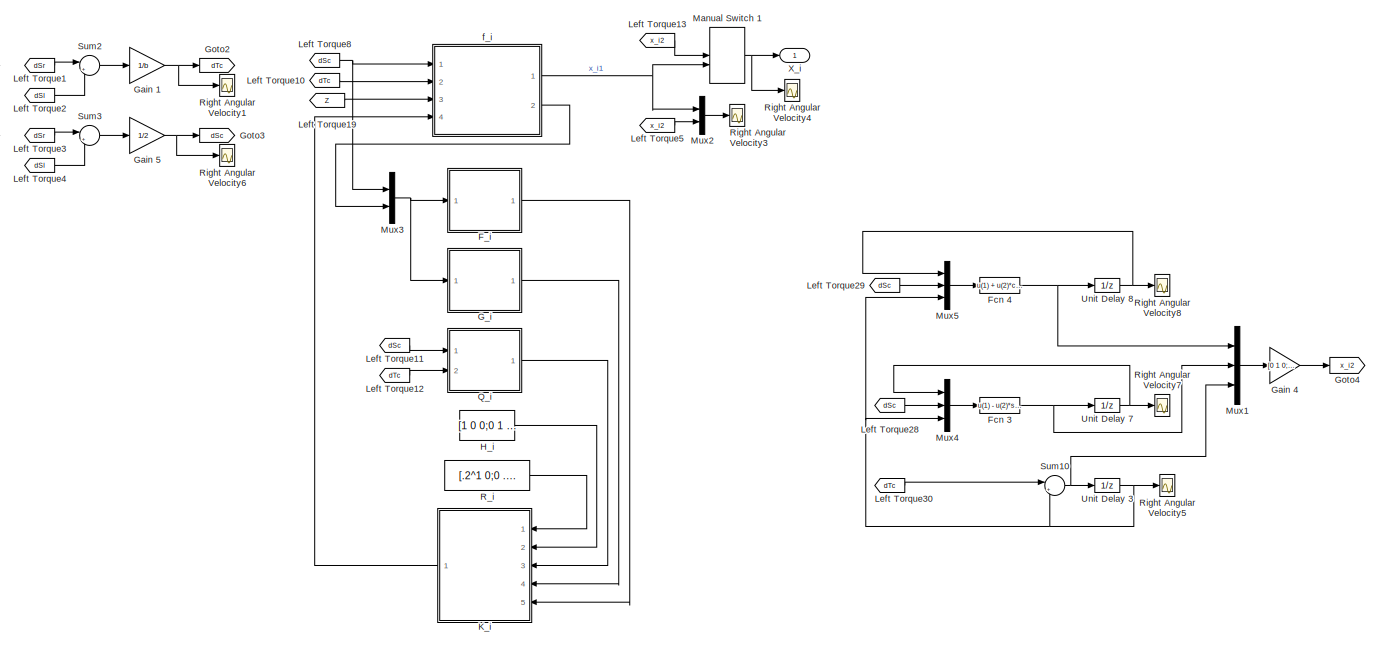
[diagram: Extended Kalman filter - part 1/2, most of the canvas]
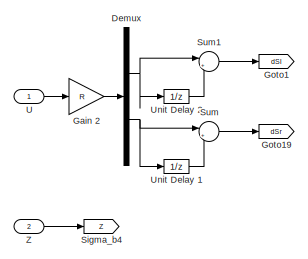
[diagram: Extended Kalman filter - part 2/2, top left region]
BLOCK [SubSystem] Extended Kalman filter
  Ports = [2, 1]
  RequestExecContextInheritance = off
  SID = 1644
BLOCK [Demux] Extended Kalman filter/Demux
  DisplayOption = bar
  Outputs = 2
  Ports = [1, 2]
  SID = 1660
BLOCK [SubSystem] Extended Kalman filter/F_i
  Ports = [1, 1]
  RequestExecContextInheritance = off
  SID = 1707
BLOCK [Constant] Extended Kalman filter/F_i/Constant 1
  SID = 1711
BLOCK [Constant] Extended Kalman filter/F_i/Constant 2
  SID = 1713
  Value = 0
BLOCK [Display] Extended Kalman filter/F_i/Display
  Decimation = 1
  Ports = [1]
  SID = 1905
BLOCK [Fcn] Extended Kalman filter/F_i/Fcn 1
  Expr = -u(1)*cos(u(2))
  SID = 1719
BLOCK [Fcn] Extended Kalman filter/F_i/Fcn 2
  Expr = -u(1)*sin(u(2))
  SID = 1720
BLOCK [Inport] Extended Kalman filter/F_i/In
  IconDisplay = Port number
  SID = 1708
BLOCK [Concatenate] Extended Kalman filter/F_i/Matrix\nConcatenate
  ConcatenateDimension = 2
  Mode = Multidimensional array
  NumInputs = 3
  Ports = [3, 1]
  SID = 1715
BLOCK [Outport] Extended Kalman filter/F_i/Out
  IconDisplay = Port number
  SID = 1709
BLOCK [Concatenate] Extended Kalman filter/F_i/Vector\nConcatenate1
  NumInputs = 3
  Ports = [3, 1]
  SID = 1714
BLOCK [Concatenate] Extended Kalman filter/F_i/Vector\nConcatenate2
  NumInputs = 3
  Ports = [3, 1]
  SID = 1717
BLOCK [Concatenate] Extended Kalman filter/F_i/Vector\nConcatenate3
  NumInputs = 3
  Ports = [3, 1]
  SID = 1718
BLOCK [Fcn] Extended Kalman filter/Fcn 3
  Expr = u(1) - u(2)*sin(u(3))
  SID = 1935
BLOCK [Fcn] Extended Kalman filter/Fcn 4
  Expr = u(1) + u(2)*cos(u(3))
  SID = 1940
BLOCK [SubSystem] Extended Kalman filter/G_i
  Ports = [1, 1]
  RequestExecContextInheritance = off
  SID = 1721
BLOCK [Constant] Extended Kalman filter/G_i/Constant 1
  SID = 1723
BLOCK [Constant] Extended Kalman filter/G_i/Constant 2
  SID = 1724
  Value = 0
BLOCK [Display] Extended Kalman filter/G_i/Display
  Decimation = 1
  Ports = [1]
  SID = 1906
BLOCK [Fcn] Extended Kalman filter/G_i/Fcn 1
  Expr = -sin(u(2))
  SID = 1725
BLOCK [Fcn] Extended Kalman filter/G_i/Fcn 2
  Expr = cos(u(2))
  SID = 1726
BLOCK [Fcn] Extended Kalman filter/G_i/Fcn 3
  Expr = -u(1)*cos(u(2))
  SID = 1947
BLOCK [Fcn] Extended Kalman filter/G_i/Fcn 4
  Expr = -u(1)*sin(u(2))
  SID = 1948
BLOCK [Inport] Extended Kalman filter/G_i/In
  IconDisplay = Port number
  SID = 1722
BLOCK [Concatenate] Extended Kalman filter/G_i/Matrix\nConcatenate
  ConcatenateDimension = 2
  Mode = Multidimensional array
  Ports = [2, 1]
  SID = 1727
BLOCK [Outport] Extended Kalman filter/G_i/Out
  IconDisplay = Port number
  SID = 1731
BLOCK [Concatenate] Extended Kalman filter/G_i/Vector\nConcatenate1
  NumInputs = 3
  Ports = [3, 1]
  SID = 1732
BLOCK [Concatenate] Extended Kalman filter/G_i/Vector\nConcatenate3
  NumInputs = 3
  Ports = [3, 1]
  SID = 1730
BLOCK [Gain] Extended Kalman filter/Gain 1
  Gain = 1/b
  OutDataTypeStr = Inherit: Inherit via internal rule
  ParamDataTypeStr = Inherit: Inherit via internal rule
  SID = 1674
  SaturateOnIntegerOverflow = off
BLOCK [Gain] Extended Kalman filter/Gain 2
  Gain = R
  OutDataTypeStr = Inherit: Inherit via internal rule
  ParamDataTypeStr = Inherit: Inherit via internal rule
  SID = 1676
  SaturateOnIntegerOverflow = off
BLOCK [Gain] Extended Kalman filter/Gain 4
  Gain = [0 1 0;1 0 0;0 0 1]
  Multiplication = Matrix(K*u)
  OutDataTypeStr = Inherit: Inherit via internal rule
  ParamDataTypeStr = Inherit: Inherit via internal rule
  SID = 2051
  SaturateOnIntegerOverflow = off
BLOCK [Gain] Extended Kalman filter/Gain 5
  Gain = 1/2
  OutDataTypeStr = Inherit: Inherit via internal rule
  ParamDataTypeStr = Inherit: Inherit via internal rule
  SID = 1945
  SaturateOnIntegerOverflow = off
BLOCK [Goto] Extended Kalman filter/Goto1
  GotoTag = dSl
  SID = 1670
BLOCK [Goto] Extended Kalman filter/Goto19
  GotoTag = dSr
  SID = 1669
BLOCK [Goto] Extended Kalman filter/Goto2
  GotoTag = dTc
  SID = 1675
BLOCK [Goto] Extended Kalman filter/Goto3
  GotoTag = dSc
  SID = 1677
BLOCK [Goto] Extended Kalman filter/Goto4
  GotoTag = x_i2
  SID = 2050
BLOCK [Constant] Extended Kalman filter/H_i
  SID = 2157
  Value = [1 0 0;0 1 0]
BLOCK [SubSystem] Extended Kalman filter/K_i
  Ports = [5, 1]
  RequestExecContextInheritance = off
  SID = 2162
BLOCK [Reference] Extended Kalman filter/K_i/ LU Inverse  REF=dspinverses/ LU Inverse
  Ports = [1, 1]
  SID = 2212
  SourceBlock = dspinverses/ LU Inverse
  SourceType = LU Inverse
BLOCK [Display] Extended Kalman filter/K_i/Display
  Decimation = 1
  Ports = [1]
  SID = 2166
BLOCK [Inport] Extended Kalman filter/K_i/F_i
  IconDisplay = Port number
  Port = 5
  SID = 2195
BLOCK [Inport] Extended Kalman filter/K_i/G_i
  IconDisplay = Port number
  Port = 4
  SID = 2189
BLOCK [Inport] Extended Kalman filter/K_i/H_i
  IconDisplay = Port number
  Port = 2
  SID = 2186
BLOCK [Math] Extended Kalman filter/K_i/Math\nFunction 1
  Operator = transpose
  Ports = [1, 1]
  SID = 2197
BLOCK [Math] Extended Kalman filter/K_i/Math\nFunction 2
  Operator = transpose
  Ports = [1, 1]
  SID = 2199
BLOCK [Math] Extended Kalman filter/K_i/Math\nFunction 3
  Operator = transpose
  Ports = [1, 1]
  SID = 2205
BLOCK [Outport] Extended Kalman filter/K_i/Out
  IconDisplay = Port number
  SID = 2173
BLOCK [Product] Extended Kalman filter/K_i/Product 1
  InputSameDT = off
  Inputs = 3
  Multiplication = Matrix(*)
  OutDataTypeStr = Inherit: Inherit via internal rule
  Ports = [3, 1]
  RndMeth = Floor
  SID = 2196
  SaturateOnIntegerOverflow = off
BLOCK [Product] Extended Kalman filter/K_i/Product 2
  InputSameDT = off
  Inputs = 3
  Multiplication = Matrix(*)
  OutDataTypeStr = Inherit: Inherit via internal rule
  Ports = [3, 1]
  RndMeth = Floor
  SID = 2198
  SaturateOnIntegerOverflow = off
BLOCK [Product] Extended Kalman filter/K_i/Product 3
  InputSameDT = off
  Multiplication = Matrix(*)
  OutDataTypeStr = Inherit: Inherit via internal rule
  Ports = [2, 1]
  RndMeth = Floor
  SID = 2201
  SaturateOnIntegerOverflow = off
BLOCK [Product] Extended Kalman filter/K_i/Product 4
  InputSameDT = off
  Multiplication = Matrix(*)
  OutDataTypeStr = Inherit: Inherit via internal rule
  Ports = [2, 1]
  RndMeth = Floor
  SID = 2203
  SaturateOnIntegerOverflow = off
BLOCK [Product] Extended Kalman filter/K_i/Product 5
  InputSameDT = off
  Inputs = 3
  Multiplication = Matrix(*)
  OutDataTypeStr = Inherit: Inherit via internal rule
  Ports = [3, 1]
  RndMeth = Floor
  SID = 2204
  SaturateOnIntegerOverflow = off
BLOCK [Product] Extended Kalman filter/K_i/Product 7
  InputSameDT = off
  Inputs = 3
  Multiplication = Matrix(*)
  OutDataTypeStr = Inherit: Inherit via internal rule
  Ports = [3, 1]
  RndMeth = Floor
  SID = 2215
  SaturateOnIntegerOverflow = off
BLOCK [Inport] Extended Kalman filter/K_i/Q_i
  IconDisplay = Port number
  Port = 3
  SID = 2187
BLOCK [Inport] Extended Kalman filter/K_i/R_i
  IconDisplay = Port number
  SID = 2163
BLOCK [Sum] Extended Kalman filter/K_i/Sum1
  IconShape = round
  InputSameDT = off
  Inputs = -+|
  OutDataTypeStr = Inherit: Inherit via internal rule
  Ports = [2, 1]
  SID = 2202
  SaturateOnIntegerOverflow = off
BLOCK [Sum] Extended Kalman filter/K_i/Sum2
  IconShape = round
  InputSameDT = off
  Inputs = |++
  OutDataTypeStr = Inherit: Inherit via internal rule
  Ports = [2, 1]
  SID = 2206
  SaturateOnIntegerOverflow = off
BLOCK [Sum] Extended Kalman filter/K_i/Sum3
  IconShape = round
  InputSameDT = off
  Inputs = |++
  OutDataTypeStr = Inherit: Inherit via internal rule
  Ports = [2, 1]
  SID = 2200
  SaturateOnIntegerOverflow = off
BLOCK [UnitDelay] Extended Kalman filter/K_i/Unit Delay 4
  InitialCondition = [1 0 0;0 1 0;0 0 1]
  InputProcessing = Elements as channels (sample based)
  SID = 2161
  SampleTime = -1
BLOCK [From] Extended Kalman filter/Left Torque1
  GotoTag = dSr
  SID = 1671
BLOCK [From] Extended Kalman filter/Left Torque10
  GotoTag = dTc
  SID = 2023
BLOCK [From] Extended Kalman filter/Left Torque11
  GotoTag = dSc
  SID = 2042
BLOCK [From] Extended Kalman filter/Left Torque12
  GotoTag = dTc
  SID = 2043
BLOCK [From] Extended Kalman filter/Left Torque13
  GotoTag = x_i2
  SID = 2055
BLOCK [From] Extended Kalman filter/Left Torque19
  GotoTag = Z
  SID = 1855
BLOCK [From] Extended Kalman filter/Left Torque2
  GotoTag = dSl
  SID = 1672
BLOCK [From] Extended Kalman filter/Left Torque28
  GotoTag = dSc
  SID = 1939
BLOCK [From] Extended Kalman filter/Left Torque29
  GotoTag = dSc
  SID = 1944
BLOCK [From] Extended Kalman filter/Left Torque3
  GotoTag = dSr
  SID = 1678
BLOCK [From] Extended Kalman filter/Left Torque30
  GotoTag = dTc
  SID = 1920
BLOCK [From] Extended Kalman filter/Left Torque4
  GotoTag = dSl
  SID = 1679
BLOCK [From] Extended Kalman filter/Left Torque5
  GotoTag = x_i2
  SID = 2160
BLOCK [From] Extended Kalman filter/Left Torque8
  GotoTag = dSc
  SID = 1693
BLOCK [ManualSwitch] Extended Kalman filter/Manual Switch 1
  CurrentSetting = 0
  SID = 2054
BLOCK [Mux] Extended Kalman filter/Mux1
  DisplayOption = bar
  Inputs = 3
  Ports = [3, 1]
  SID = 2049
BLOCK [Mux] Extended Kalman filter/Mux2
  DisplayOption = bar
  Inputs = 2
  Ports = [2, 1]
  SID = 2070
BLOCK [Mux] Extended Kalman filter/Mux3
  DisplayOption = bar
  Inputs = 2
  Ports = [2, 1]
  SID = 1704
BLOCK [Mux] Extended Kalman filter/Mux4
  DisplayOption = bar
  Inputs = 3
  Ports = [3, 1]
  SID = 1938
BLOCK [Mux] Extended Kalman filter/Mux5
  DisplayOption = bar
  Inputs = 3
  Ports = [3, 1]
  SID = 1941
BLOCK [SubSystem] Extended Kalman filter/Q_i
  Ports = [2, 1]
  RequestExecContextInheritance = off
  SID = 1736
BLOCK [Abs] Extended Kalman filter/Q_i/Abs 2
  SID = 2047
  SaturateOnIntegerOverflow = off
BLOCK [Abs] Extended Kalman filter/Q_i/Abs 3
  SID = 2048
  SaturateOnIntegerOverflow = off
BLOCK [Gain] Extended Kalman filter/Q_i/Alpha_1
  Gain = 2e-3
  OutDataTypeStr = Inherit: Inherit via internal rule
  ParamDataTypeStr = Inherit: Inherit via internal rule
  SID = 2044
  SaturateOnIntegerOverflow = off
BLOCK [Gain] Extended Kalman filter/Q_i/Alpha_2
  Gain = 1e-2
  OutDataTypeStr = Inherit: Inherit via internal rule
  ParamDataTypeStr = Inherit: Inherit via internal rule
  SID = 2045
  SaturateOnIntegerOverflow = off
BLOCK [Gain] Extended Kalman filter/Q_i/Alpha_3
  Gain = 1e-2
  OutDataTypeStr = Inherit: Inherit via internal rule
  ParamDataTypeStr = Inherit: Inherit via internal rule
  SID = 2155
  SaturateOnIntegerOverflow = off
BLOCK [Gain] Extended Kalman filter/Q_i/Alpha_4
  Gain = 1e-3
  OutDataTypeStr = Inherit: Inherit via internal rule
  ParamDataTypeStr = Inherit: Inherit via internal rule
  SID = 2154
  SaturateOnIntegerOverflow = off
BLOCK [Constant] Extended Kalman filter/Q_i/Constant 2
  SID = 2149
  Value = 0
BLOCK [Display] Extended Kalman filter/Q_i/Display
  Decimation = 1
  Ports = [1]
  SID = 1909
BLOCK [Inport] Extended Kalman filter/Q_i/In 1
  IconDisplay = Port number
  SID = 2040
BLOCK [Inport] Extended Kalman filter/Q_i/In 2
  IconDisplay = Port number
  Port = 2
  SID = 2041
BLOCK [Math] Extended Kalman filter/Q_i/Math\nFunction 1
  Operator = square
  Ports = [1, 1]
  SID = 2152
BLOCK [Math] Extended Kalman filter/Q_i/Math\nFunction 2
  Operator = square
  Ports = [1, 1]
  SID = 2156
BLOCK [Concatenate] Extended Kalman filter/Q_i/Matrix\nConcatenate
  ConcatenateDimension = 2
  Mode = Multidimensional array
  Ports = [2, 1]
  SID = 1744
BLOCK [Outport] Extended Kalman filter/Q_i/Out
  IconDisplay = Port number
  SID = 1748
BLOCK [Sum] Extended Kalman filter/Q_i/Sum
  IconShape = round
  InputSameDT = off
  Inputs = |++
  OutDataTypeStr = Inherit: Inherit via internal rule
  Ports = [2, 1]
  SID = 2151
  SaturateOnIntegerOverflow = off
BLOCK [Sum] Extended Kalman filter/Q_i/Sum1
  IconShape = round
  InputSameDT = off
  Inputs = ++|
  OutDataTypeStr = Inherit: Inherit via internal rule
  Ports = [2, 1]
  SID = 2153
  SaturateOnIntegerOverflow = off
BLOCK [Concatenate] Extended Kalman filter/Q_i/Vector\nConcatenate1
  Ports = [2, 1]
  SID = 1745
BLOCK [Concatenate] Extended Kalman filter/Q_i/Vector\nConcatenate3
  Ports = [2, 1]
  SID = 1747
BLOCK [Constant] Extended Kalman filter/R_i
  SID = 2159
  Value = [.2^1 0;0 .1^1]
BLOCK [Scope] Extended Kalman filter/Right Angular Velocity1
  Floating = off
  LimitDataPoints = off
  NumInputPorts = 1
  Ports = [1]
  SID = 1682
  SaveName = ScopeData23
  ShowLegends = off
  YMax = 1
  YMin = -1
  ZoomMode = xonly
BLOCK [Scope] Extended Kalman filter/Right Angular Velocity3
  Floating = off
  LimitDataPoints = off
  NumInputPorts = 1
  Ports = [1]
  SID = 2071
  SaveName = ScopeData29
  ShowLegends = off
  YMax = 2
  YMin = -1
BLOCK [Scope] Extended Kalman filter/Right Angular Velocity4
  Floating = off
  LimitDataPoints = off
  NumInputPorts = 1
  Ports = [1]
  SID = 1913
  SaveName = ScopeData31
  ShowLegends = off
  YMax = 1
  YMin = -1
  ZoomMode = yonly
BLOCK [Scope] Extended Kalman filter/Right Angular Velocity5
  Floating = off
  LimitDataPoints = off
  NumInputPorts = 1
  Ports = [1]
  SID = 1932
  SaveName = ScopeData32
  ShowLegends = off
  YMax = 3
  YMin = -1
  ZoomMode = yonly
BLOCK [Scope] Extended Kalman filter/Right Angular Velocity6
  Floating = off
  LimitDataPoints = off
  NumInputPorts = 1
  Ports = [1]
  SID = 1681
  SaveName = ScopeData22
  ShowLegends = off
  YMax = 1
  YMin = -1
  ZoomMode = xonly
BLOCK [Scope] Extended Kalman filter/Right Angular Velocity7
  Floating = off
  LimitDataPoints = off
  NumInputPorts = 1
  Ports = [1]
  SID = 1937
  SaveName = ScopeData33
  ShowLegends = off
  YMax = 2510
  YMin = 2490
  ZoomMode = yonly
BLOCK [Scope] Extended Kalman filter/Right Angular Velocity8
  Floating = off
  LimitDataPoints = off
  NumInputPorts = 1
  Ports = [1]
  SID = 1943
  SaveName = ScopeData34
  ShowLegends = off
  YMax = 500
  YMin = 100
BLOCK [Goto] Extended Kalman filter/Sigma_b4
  GotoTag = Z
  SID = 2135
BLOCK [Sum] Extended Kalman filter/Sum
  IconShape = round
  InputSameDT = off
  Inputs = |+-
  OutDataTypeStr = Inherit: Inherit via internal rule
  Ports = [2, 1]
  SID = 1661
  SaturateOnIntegerOverflow = off
BLOCK [Sum] Extended Kalman filter/Sum1
  IconShape = round
  InputSameDT = off
  Inputs = |+-
  OutDataTypeStr = Inherit: Inherit via internal rule
  Ports = [2, 1]
  SID = 1667
  SaturateOnIntegerOverflow = off
BLOCK [Sum] Extended Kalman filter/Sum10
  IconShape = round
  InputSameDT = off
  Inputs = |++
  OutDataTypeStr = Inherit: Inherit via internal rule
  Ports = [2, 1]
  SID = 1934
  SaturateOnIntegerOverflow = off
BLOCK [Sum] Extended Kalman filter/Sum2
  IconShape = round
  InputSameDT = off
  Inputs = |+-
  OutDataTypeStr = Inherit: Inherit via internal rule
  Ports = [2, 1]
  SID = 1673
  SaturateOnIntegerOverflow = off
BLOCK [Sum] Extended Kalman filter/Sum3
  IconShape = round
  InputSameDT = off
  Inputs = |++
  OutDataTypeStr = Inherit: Inherit via internal rule
  Ports = [2, 1]
  SID = 1680
  SaturateOnIntegerOverflow = off
BLOCK [Inport] Extended Kalman filter/U
  IconDisplay = Port number
  SID = 1645
BLOCK [UnitDelay] Extended Kalman filter/Unit Delay 1
  InputProcessing = Elements as channels (sample based)
  SID = 1659
  SampleTime = -1
BLOCK [UnitDelay] Extended Kalman filter/Unit Delay 2
  InputProcessing = Elements as channels (sample based)
  SID = 1668
  SampleTime = -1
BLOCK [UnitDelay] Extended Kalman filter/Unit Delay 3
  InputProcessing = Elements as channels (sample based)
  SID = 1933
  SampleTime = -1
BLOCK [UnitDelay] Extended Kalman filter/Unit Delay 7
  InitialCondition = 2500
  InputProcessing = Elements as channels (sample based)
  SID = 1936
  SampleTime = -1
BLOCK [UnitDelay] Extended Kalman filter/Unit Delay 8
  InitialCondition = 200
  InputProcessing = Elements as channels (sample based)
  SID = 1942
  SampleTime = -1
BLOCK [Outport] Extended Kalman filter/X_i
  IconDisplay = Port number
  SID = 1647
BLOCK [Inport] Extended Kalman filter/Z
  IconDisplay = Port number
  Port = 2
  SID = 1646
BLOCK [SubSystem] Extended Kalman filter/f_i
  Ports = [4, 2]
  RequestExecContextInheritance = off
  SID = 1969
BLOCK [Inport] Extended Kalman filter/f_i/Delta_s,c
  IconDisplay = Port number
  SID = 1970
BLOCK [Inport] Extended Kalman filter/f_i/Delta_theta,c
  IconDisplay = Port number
  Port = 2
  SID = 2022
BLOCK [Fcn] Extended Kalman filter/f_i/Fcn 1
  Expr = -u(1)*sin(u(2))
  SID = 1696
BLOCK [Fcn] Extended Kalman filter/f_i/Fcn 2
  Expr = u(1)*cos(u(2))
  SID = 1698
BLOCK [Gain] Extended Kalman filter/f_i/Gain 1
  Gain = [1 0 0;0 1 0]
  Multiplication = Matrix(K*u)
  OutDataTypeStr = Inherit: Inherit via internal rule
  ParamDataTypeStr = Inherit: Inherit via internal rule
  SID = 2136
  SaturateOnIntegerOverflow = off
BLOCK [Gain] Extended Kalman filter/f_i/Gain 2
  Gain = [0 0 1]
  Multiplication = Matrix(K*u)
  OutDataTypeStr = Inherit: Inherit via internal rule
  ParamDataTypeStr = Inherit: Inherit via internal rule
  SID = 2144
  SaturateOnIntegerOverflow = off
BLOCK [Gain] Extended Kalman filter/f_i/Gain 6
  Gain = [0 0 1]
  Multiplication = Matrix(K*u)
  OutDataTypeStr = Inherit: Inherit via internal rule
  ParamDataTypeStr = Inherit: Inherit via internal rule
  SID = 1946
  SaturateOnIntegerOverflow = off
BLOCK [Inport] Extended Kalman filter/f_i/K_i
  IconDisplay = Port number
  Port = 4
  SID = 2139
BLOCK [Mux] Extended Kalman filter/f_i/Mux
  DisplayOption = bar
  Inputs = 3
  Ports = [3, 1]
  SID = 1689
BLOCK [Mux] Extended Kalman filter/f_i/Mux1
  DisplayOption = bar
  Inputs = 2
  Ports = [2, 1]
  SID = 1691
BLOCK [Mux] Extended Kalman filter/f_i/Mux2
  DisplayOption = bar
  Inputs = 2
  Ports = [2, 1]
  SID = 1695
BLOCK [Product] Extended Kalman filter/f_i/Product 1
  InputSameDT = off
  Multiplication = Matrix(*)
  OutDataTypeStr = Inherit: Inherit via internal rule
  Ports = [2, 1]
  RndMeth = Floor
  SID = 2140
  SaturateOnIntegerOverflow = off
BLOCK [Scope] Extended Kalman filter/f_i/Right Angular Velocity3
  Floating = off
  LimitDataPoints = off
  NumInputPorts = 1
  Ports = [1]
  SID = 1950
  SaveName = ScopeData30
  ShowLegends = off
  YMax = 1
  YMin = -1
  ZoomMode = yonly
BLOCK [Sum] Extended Kalman filter/f_i/Sum2
  IconShape = round
  InputSameDT = off
  Inputs = |+-
  OutDataTypeStr = Inherit: Inherit via internal rule
  Ports = [2, 1]
  SID = 2138
  SaturateOnIntegerOverflow = off
BLOCK [Sum] Extended Kalman filter/f_i/Sum4
  IconShape = round
  InputSameDT = off
  Inputs = +++
  OutDataTypeStr = Inherit: Inherit via internal rule
  Ports = [3, 1]
  SID = 1699
  SaturateOnIntegerOverflow = off
BLOCK [Outport] Extended Kalman filter/f_i/Theta_i-1
  IconDisplay = Port number
  Port = 2
  SID = 2143
BLOCK [UnitDelay] Extended Kalman filter/f_i/Unit Delay 7
  InitialCondition = [2500 200 0]'
  InputProcessing = Elements as channels (sample based)
  SID = 2134
  SampleTime = -1
BLOCK [Outport] Extended Kalman filter/f_i/X_i
  IconDisplay = Port number
  SID = 1973
BLOCK [Inport] Extended Kalman filter/f_i/Z_i
  IconDisplay = Port number
  Port = 3
  SID = 1972
BLOCK [FromWorkspace] From\nWorkspace
  SID = 4477
  SampleTime = Ts
  VariableName = desired_path
  ZeroCross = on
BLOCK [Gain] Gain 1
  Gain = [0 1]
  Multiplication = Matrix(K*u)
  OutDataTypeStr = Inherit: Inherit via internal rule
  ParamDataTypeStr = Inherit: Inherit via internal rule
  SID = 3930
  SaturateOnIntegerOverflow = off
BLOCK [Gain] Gain 2
  Gain = [1 0 0;0 1 0]
  Multiplication = Matrix(K*u)
  OutDataTypeStr = Inherit: Inherit via internal rule
  ParamDataTypeStr = Inherit: Inherit via internal rule
  SID = 4363
  SaturateOnIntegerOverflow = off
BLOCK [Gain] Gain 8
  Gain = [1 0]
  Multiplication = Matrix(K*u)
  OutDataTypeStr = Inherit: Inherit via internal rule
  ParamDataTypeStr = Inherit: Inherit via internal rule
  SID = 3929
  SaturateOnIntegerOverflow = off
BLOCK [Goto] Goto
  GotoTag = Tl
  SID = 28
  TagVisibility = global
BLOCK [Goto] Goto1
  GotoTag = Tr
  SID = 181
  TagVisibility = global
BLOCK [Goto] Goto10
  GotoTag = Xt
  SID = 4379
  TagVisibility = global
BLOCK [Goto] Goto11
  GotoTag = Dy
  SID = 4478
  TagVisibility = global
BLOCK [Goto] Goto12
  GotoTag = Do
  SID = 4479
  TagVisibility = global
BLOCK [Goto] Goto13
  GotoTag = Ord
  SID = 4480
  TagVisibility = global
BLOCK [Goto] Goto14
  GotoTag = Dx
  SID = 4481
  TagVisibility = global
BLOCK [Goto] Goto15
  GotoTag = Xdn
  SID = 1590
  TagVisibility = global
BLOCK [Goto] Goto16
  GotoTag = Ydn
  SID = 1591
  TagVisibility = global
BLOCK [Goto] Goto17
  GotoTag = Xde
  SID = 1992
  TagVisibility = global
BLOCK [Goto] Goto18
  GotoTag = Yde
  SID = 1993
  TagVisibility = global
BLOCK [Goto] Goto19
  GotoTag = Ore
  SID = 1994
  TagVisibility = global
BLOCK [Goto] Goto2
  GotoTag = Wr
  SID = 30
  TagVisibility = global
BLOCK [Goto] Goto3
  GotoTag = Wl
  SID = 31
  TagVisibility = global
BLOCK [Goto] Goto4
  GotoTag = Or
  SID = 32
  TagVisibility = global
BLOCK [Goto] Goto5
  GotoTag = Xd
  SID = 33
  TagVisibility = global
BLOCK [Goto] Goto6
  GotoTag = Yd
  SID = 34
  TagVisibility = global
BLOCK [Goto] Goto7
  GotoTag = Xc
  SID = 4362
  TagVisibility = global
BLOCK [Goto] Goto8
  GotoTag = Wld
  SID = 4377
  TagVisibility = global
BLOCK [Goto] Goto9
  GotoTag = Wrd
  SID = 4378
  TagVisibility = global
BLOCK [From] Left Torque
  GotoTag = Tl
  SID = 25
  TagVisibility = global
BLOCK [From] Left Torque1
  GotoTag = Xc
  SID = 4364
  TagVisibility = global
BLOCK [From] Left Torque10
  GotoTag = Or
  SID = 762
  TagVisibility = global
BLOCK [From] Left Torque11
  GotoTag = Wrd
  SID = 183
  TagVisibility = global
BLOCK [From] Left Torque12
  GotoTag = Al
  SID = 1634
  TagVisibility = global
BLOCK [From] Left Torque13
  GotoTag = Wld
  SID = 272
  TagVisibility = global
BLOCK [From] Left Torque14
  GotoTag = Wl
  SID = 273
  TagVisibility = global
BLOCK [From] Left Torque15
  GotoTag = Wrd
  SID = 275
  TagVisibility = global
BLOCK [From] Left Torque16
  GotoTag = Wr
  SID = 276
  TagVisibility = global
BLOCK [From] Left Torque17
  GotoTag = Ar
  SID = 1635
  TagVisibility = global
BLOCK [From] Left Torque18
  GotoTag = Xdn
  SID = 1637
  TagVisibility = global
BLOCK [From] Left Torque19
  GotoTag = Ydn
  SID = 1638
  TagVisibility = global
BLOCK [From] Left Torque2
  GotoTag = Dx
  SID = 4484
  TagVisibility = global
BLOCK [From] Left Torque20
  GotoTag = Ore
  SID = 1995
  TagVisibility = global
BLOCK [From] Left Torque21
  GotoTag = Xdn
  SID = 1996
  TagVisibility = global
BLOCK [From] Left Torque22
  GotoTag = Xde
  SID = 1997
  TagVisibility = global
BLOCK [From] Left Torque23
  GotoTag = Ydn
  SID = 2000
  TagVisibility = global
BLOCK [From] Left Torque24
  GotoTag = Yde
  SID = 2001
  TagVisibility = global
BLOCK [From] Left Torque25
  GotoTag = Xt
  SID = 3932
  TagVisibility = global
BLOCK [From] Left Torque26
  GotoTag = Xc
  SID = 3933
  TagVisibility = global
BLOCK [From] Left Torque3
  GotoTag = Dy
  SID = 4485
  TagVisibility = global
BLOCK [From] Left Torque36
  GotoTag = Xt
  SID = 3928
  TagVisibility = global
BLOCK [From] Left Torque37
  GotoTag = Xt
  SID = 3931
  TagVisibility = global
BLOCK [From] Left Torque4
  GotoTag = Wld
  SID = 99
  TagVisibility = global
BLOCK [From] Left Torque7
  GotoTag = Xd
  SID = 461
  TagVisibility = global
BLOCK [From] Left Torque8
  GotoTag = Yd
  SID = 462
  TagVisibility = global
BLOCK [From] Left Torque9
  GotoTag = Ord
  SID = 761
  TagVisibility = global
BLOCK [Scope] Left Wheel Angular Velocity
  Floating = off
  LimitDataPoints = off
  NumInputPorts = 1
  Ports = [1]
  SID = 2
  SaveName = ScopeData2
  ShowLegends = off
  YMax = 1
  YMin = -1
BLOCK [ManualSwitch] Manual Switch 1
  CurrentSetting = 0
  SID = 4475
BLOCK [ManualSwitch] Manual Switch 2
  SID = 4527
BLOCK [SubSystem] Mobile Robot Model
  Ports = [2, 5]
  RequestExecContextInheritance = off
  SID = 1531
  ShowPortLabels = none
BLOCK [SubSystem] Mobile Robot Model/ADAMS Plant
  InitFcn = clear mex
  LoadFcn = %check based on dialog box setting for when setting by popup menu                                             \nif exist('ADAMS_solver_type')                                                                                 \n  if strcmp(ADAMS_solver_type,'C++')                                                                          \n    set_param(gcb,'exetyp','C++');                              ...<+3523ch>
  OpenFcn = open_system(gcb,'mask')                                                                                                                          \nif not(exist('set_some_params_states'))                                                                                                          \n                                                                                                          ...<+634ch>
  Ports = [1, 1]
  RequestExecContextInheritance = off
  SID = 1534
BLOCK [Inport] Mobile Robot Model/ADAMS Plant/ADAMS inputs
  IconDisplay = Port number
  SID = 1535
BLOCK [Outport] Mobile Robot Model/ADAMS Plant/ADAMS outputs
  IconDisplay = Port number
  InitialOutput = 0
  SID = 1537
BLOCK [S-Function] Mobile Robot Model/ADAMS Plant/S-Function
  EnableBusSupport = off
  FunctionName = adams_plant
  Parameters = exevie,exesol,stat,outfil,nampre,o_rate,nam_in,namout,dft,modsim,modani,dt_out,inicmd,exetyp,comtyp,ada_host, workdir,pin_interp_order,pout_extrap_order,pin_extrap_order,pout_interp_order,simulink_lead_cosim
  Ports = [1, 1]
  SID = 1536
  StopFcn = clear mex
BLOCK [Outport] Mobile Robot Model/Alpha
  IconDisplay = Port number
  Port = 3
  SID = 1546
BLOCK [Clock] Mobile Robot Model/Clock
  SID = 1538
BLOCK [Demux] Mobile Robot Model/Demux
  Outputs = 5
  Ports = [1, 5]
  SID = 1539
BLOCK [Mux] Mobile Robot Model/Mux
  Inputs = 2
  Ports = [2, 1]
  SID = 1540
BLOCK [ToWorkspace] Mobile Robot Model/T To Workspace
  MaxDataPoints = 100000
  Ports = [1]
  SID = 1541
  VariableName = ADAMS_tout
BLOCK [Inport] Mobile Robot Model/Tlw
  IconDisplay = Port number
  Port = 2
  SID = 1533
BLOCK [Inport] Mobile Robot Model/Trw
  IconDisplay = Port number
  SID = 1532
BLOCK [ToWorkspace] Mobile Robot Model/U To Workspace
  MaxDataPoints = 100000
  Ports = [1]
  SID = 1542
  VariableName = ADAMS_uout
BLOCK [Outport] Mobile Robot Model/Wlw
  IconDisplay = Port number
  Port = 2
  SID = 1545
BLOCK [Outport] Mobile Robot Model/Wrw
  IconDisplay = Port number
  SID = 1544
BLOCK [Outport] Mobile Robot Model/X_Dist
  IconDisplay = Port number
  Port = 4
  SID = 1547
BLOCK [ToWorkspace] Mobile Robot Model/Y To Workspace
  MaxDataPoints = 100000
  Ports = [1]
  SID = 1543
  VariableName = ADAMS_yout
BLOCK [Outport] Mobile Robot Model/Y_Dist
  IconDisplay = Port number
  Port = 5
  SID = 1548
BLOCK [Mux] Mux1
  DisplayOption = bar
  Inputs = 3
  Ports = [3, 1]
  SID = 763
BLOCK [Mux] Mux2
  DisplayOption = bar
  Inputs = 2
  Ports = [2, 1]
  SID = 1636
BLOCK [Mux] Mux3
  DisplayOption = bar
  Inputs = 2
  Ports = [2, 1]
  SID = 1639
BLOCK [Mux] Mux4
  DisplayOption = bar
  Inputs = 2
  Ports = [2, 1]
  SID = 271
BLOCK [Mux] Mux5
  DisplayOption = bar
  Inputs = 2
  Ports = [2, 1]
  SID = 277
BLOCK [Mux] Mux6
  DisplayOption = bar
  Inputs = 3
  Ports = [3, 1]
  SID = 1998
BLOCK [Mux] Mux7
  DisplayOption = bar
  Inputs = 3
  Ports = [3, 1]
  SID = 2002
BLOCK [Mux] Mux8
  DisplayOption = bar
  Inputs = 2
  Ports = [2, 1]
  SID = 2058
BLOCK [Mux] Mux9
  DisplayOption = bar
  Inputs = 2
  Ports = [2, 1]
  SID = 4483
BLOCK [Scope] Orientation Angle
  Floating = off
  LimitDataPoints = off
  NumInputPorts = 1
  Ports = [1]
  SID = 1
  SaveName = ScopeData1
  ShowLegends = off
  YMax = 0.1
  YMin = -0.1
BLOCK [SubSystem] Position reference 1
  Ports = [0, 1]
  RequestExecContextInheritance = off
  SID = 4266
BLOCK [SubSystem] Position reference 1/Clutch 3
  Ports = [1, 1]
  RequestExecContextInheritance = off
  SID = 4538
BLOCK [Constant] Position reference 1/Clutch 3/Constant1
  SID = 4540
BLOCK [DigitalClock] Position reference 1/Clutch 3/Digital Clock
  SID = 4541
  SampleTime = Ts
BLOCK [Inport] Position reference 1/Clutch 3/Input
  IconDisplay = Port number
  SID = 4539
BLOCK [Outport] Position reference 1/Clutch 3/Output
  IconDisplay = Port number
  SID = 4546
BLOCK [Product] Position reference 1/Clutch 3/Product
  InputSameDT = off
  OutDataTypeStr = Inherit: Inherit via internal rule
  Ports = [2, 1]
  RndMeth = Floor
  SID = 4542
  SaturateOnIntegerOverflow = off
BLOCK [Scope] Position reference 1/Clutch 3/Rear Wheel Angular Speed5
  Floating = off
  LimitDataPoints = off
  NumInputPorts = 1
  Ports = [1]
  SID = 4543
  SaveName = ScopeData20
  ShowLegends = off
  YMax = 1
  YMin = 2.77556e-17
  ZoomMode = xonly
BLOCK [Sin] Position reference 1/Clutch 3/Sine Wave
  Frequency = (pi/40)
  Ports = [0, 1]
  SID = 4544
  SampleTime = Ts
BLOCK [Switch] Position reference 1/Clutch 3/Switch
  InputSameDT = off
  SID = 4545
  SaturateOnIntegerOverflow = off
  Threshold = 20
BLOCK [Constant] Position reference 1/Constant 1
  SID = 4398
  Value = 0
BLOCK [Constant] Position reference 1/Constant 10
  SID = 4402
  Value = 0
BLOCK [Constant] Position reference 1/Constant 11
  SID = 4486
  Value = 0
BLOCK [Constant] Position reference 1/Constant 12
  SID = 4487
  Value = 1350
BLOCK [Constant] Position reference 1/Constant 2
  SID = 4268
  Value = 2500
BLOCK [Constant] Position reference 1/Constant 3
  SID = 4381
  Value = 0
BLOCK [Constant] Position reference 1/Constant 4
  SID = 4383
  Value = 35
BLOCK [Constant] Position reference 1/Constant 5
  SID = 4385
  Value = 0
BLOCK [Constant] Position reference 1/Constant 6
  SID = 4389
  Value = 2500
BLOCK [Constant] Position reference 1/Constant 7
  SID = 4394
  Value = 32.8571
BLOCK [Constant] Position reference 1/Constant 8
  SID = 4396
  Value = 0
BLOCK [Constant] Position reference 1/Constant 9
  SID = 4401
  Value = 200
BLOCK [DigitalClock] Position reference 1/Digital Clock1
  SID = 4269
  SampleTime = Ts
BLOCK [Mux] Position reference 1/Mux1
  DisplayOption = bar
  Inputs = 2
  Ports = [2, 1]
  SID = 4391
BLOCK [Mux] Position reference 1/Mux12
  DisplayOption = bar
  Inputs = 2
  Ports = [2, 1]
  SID = 4270
BLOCK [Product] Position reference 1/Product 1
  InputSameDT = off
  OutDataTypeStr = Inherit: Inherit via internal rule
  Ports = [2, 1]
  RndMeth = Floor
  SID = 4271
  SaturateOnIntegerOverflow = off
BLOCK [Product] Position reference 1/Product 2
  InputSameDT = off
  OutDataTypeStr = Inherit: Inherit via internal rule
  Ports = [2, 1]
  RndMeth = Floor
  SID = 4272
  SaturateOnIntegerOverflow = off
BLOCK [Product] Position reference 1/Product 4
  InputSameDT = off
  OutDataTypeStr = Inherit: Inherit via internal rule
  Ports = [2, 1]
  RndMeth = Floor
  SID = 4393
  SaturateOnIntegerOverflow = off
BLOCK [Scope] Position reference 1/Scope 2
  Floating = off
  LimitDataPoints = off
  NumInputPorts = 1
  Ports = [1]
  SID = 4273
  ShowLegends = off
  YMax = 10
  YMin = -10
  ZoomMode = xonly
BLOCK [Scope] Position reference 1/Scope 3
  Floating = off
  LimitDataPoints = off
  NumInputPorts = 1
  Ports = [1]
  SID = 4274
  SaveName = ScopeData1
  ShowLegends = off
  YMax = 10
  YMin = -10
  ZoomMode = xonly
BLOCK [Sin] Position reference 1/Sine Wave 1
  Amplitude = 600
  Frequency = 2*pi/120
  Ports = [1, 1]
  SID = 4275
  SampleTime = 0
  TimeSource = Use external signal
BLOCK [Sin] Position reference 1/Sine Wave 2
  Amplitude = 600
  Frequency = 2*pi/120
  Ports = [1, 1]
  SID = 4276
  SampleTime = 0
  TimeSource = Use external signal
BLOCK [Sin] Position reference 1/Sine Wave 3
  Frequency = 2*pi/90
  Ports = [1, 1]
  SID = 4277
  SampleTime = 0
  TimeSource = Use external signal
BLOCK [Sin] Position reference 1/Sine Wave 4
  Frequency = 2*pi/90
  Phase = pi/2
  Ports = [1, 1]
  SID = 4278
  SampleTime = 0
  TimeSource = Use external signal
BLOCK [Sum] Position reference 1/Sum1
  IconShape = round
  InputSameDT = off
  Inputs = ++|
  OutDataTypeStr = Inherit: Inherit via internal rule
  Ports = [2, 1]
  SID = 4279
  SaturateOnIntegerOverflow = off
BLOCK [Sum] Position reference 1/Sum2
  IconShape = round
  InputSameDT = off
  Inputs = ++|
  OutDataTypeStr = Inherit: Inherit via internal rule
  Ports = [2, 1]
  SID = 4280
  SaturateOnIntegerOverflow = off
BLOCK [Sum] Position reference 1/Sum3
  IconShape = round
  InputSameDT = off
  Inputs = -+|
  OutDataTypeStr = Inherit: Inherit via internal rule
  Ports = [2, 1]
  SID = 4382
  SaturateOnIntegerOverflow = off
BLOCK [Sum] Position reference 1/Sum4
  IconShape = round
  InputSameDT = off
  Inputs = |++
  OutDataTypeStr = Inherit: Inherit via internal rule
  Ports = [2, 1]
  SID = 4392
  SaturateOnIntegerOverflow = off
BLOCK [Sum] Position reference 1/Sum6
  IconShape = round
  InputSameDT = off
  Inputs = |++
  OutDataTypeStr = Inherit: Inherit via internal rule
  Ports = [2, 1]
  SID = 4404
  SaturateOnIntegerOverflow = off
BLOCK [Switch] Position reference 1/Switch 1
  Criteria = u2 > Threshold
  InputSameDT = off
  SID = 4380
  SaturateOnIntegerOverflow = off
  Threshold = 35
BLOCK [Switch] Position reference 1/Switch 2
  Criteria = u2 > Threshold
  InputSameDT = off
  SID = 4384
  SaturateOnIntegerOverflow = off
  Threshold = 35
BLOCK [Switch] Position reference 1/Switch 3
  Criteria = u2 > Threshold
  InputSameDT = off
  SID = 4395
  SaturateOnIntegerOverflow = off
  Threshold = 35
BLOCK [Switch] Position reference 1/Switch 4
  Criteria = u2 > Threshold
  InputSameDT = off
  SID = 4397
  SaturateOnIntegerOverflow = off
  Threshold = 35
BLOCK [Switch] Position reference 1/Switch 5
  Criteria = u2 > Threshold
  InputSameDT = off
  SID = 4399
  SaturateOnIntegerOverflow = off
  Threshold = 35
BLOCK [Switch] Position reference 1/Switch 6
  Criteria = u2 > Threshold
  InputSameDT = off
  SID = 4488
  SaturateOnIntegerOverflow = off
  Threshold = 35
BLOCK [Outport] Position reference 1/X*
  IconDisplay = Port number
  SID = 4281
BLOCK [SubSystem] Position reference 2
  Ports = [0, 1]
  RequestExecContextInheritance = off
  SID = 4489
BLOCK [SubSystem] Position reference 2/Clutch 3
  Ports = [1, 1]
  RequestExecContextInheritance = off
  SID = 4528
BLOCK [Constant] Position reference 2/Clutch 3/Constant1
  SID = 4530
BLOCK [DigitalClock] Position reference 2/Clutch 3/Digital Clock
  SID = 4531
  SampleTime = Ts
BLOCK [Inport] Position reference 2/Clutch 3/Input
  IconDisplay = Port number
  SID = 4529
BLOCK [Outport] Position reference 2/Clutch 3/Output
  IconDisplay = Port number
  SID = 4536
BLOCK [Product] Position reference 2/Clutch 3/Product
  InputSameDT = off
  OutDataTypeStr = Inherit: Inherit via internal rule
  Ports = [2, 1]
  RndMeth = Floor
  SID = 4532
  SaturateOnIntegerOverflow = off
BLOCK [Scope] Position reference 2/Clutch 3/Rear Wheel Angular Speed5
  Floating = off
  LimitDataPoints = off
  NumInputPorts = 1
  Ports = [1]
  SID = 4533
  SaveName = ScopeData20
  ShowLegends = off
  YMax = 1
  YMin = 2.77556e-17
  ZoomMode = xonly
BLOCK [Sin] Position reference 2/Clutch 3/Sine Wave
  Frequency = (pi/40)
  Ports = [0, 1]
  SID = 4534
  SampleTime = Ts
BLOCK [Switch] Position reference 2/Clutch 3/Switch
  InputSameDT = off
  SID = 4535
  SaturateOnIntegerOverflow = off
  Threshold = 20
BLOCK [Constant] Position reference 2/Constant 1
  SID = 4526
  Value = 1500
BLOCK [Constant] Position reference 2/Constant 2
  SID = 4547
  Value = 2*pi/180
BLOCK [Constant] Position reference 2/Constant 3
  SID = 4549
  Value = 2500
BLOCK [Constant] Position reference 2/Constant 4
  SID = 4553
  Value = 1700
BLOCK [DigitalClock] Position reference 2/Digital Clock1
  SID = 4502
  SampleTime = Ts
BLOCK [Fcn] Position reference 2/Fcn 1
  Expr = u(3)*sin(u(1)*u(2))
  SID = 4577
BLOCK [Fcn] Position reference 2/Fcn 2
  Expr = u(3)*cos(u(1)*u(2))
  SID = 4579
BLOCK [Mux] Position reference 2/Mux1
  DisplayOption = bar
  Inputs = 3
  Ports = [3, 1]
  SID = 4578
BLOCK [Mux] Position reference 2/Mux12
  DisplayOption = bar
  Inputs = 2
  Ports = [2, 1]
  SID = 4504
BLOCK [Scope] Position reference 2/Scope 2
  Floating = off
  LimitDataPoints = off
  NumInputPorts = 1
  Ports = [1]
  SID = 4508
  ShowLegends = off
  YMax = 10
  YMin = -10
  ZoomMode = xonly
BLOCK [Scope] Position reference 2/Scope 3
  Floating = off
  LimitDataPoints = off
  NumInputPorts = 1
  Ports = [1]
  SID = 4509
  SaveName = ScopeData1
  ShowLegends = off
  YMax = 10
  YMin = -10
  ZoomMode = xonly
BLOCK [Sum] Position reference 2/Sum1
  IconShape = round
  InputSameDT = off
  Inputs = +-|
  OutDataTypeStr = Inherit: Inherit via internal rule
  Ports = [2, 1]
  SID = 4548
  SaturateOnIntegerOverflow = off
BLOCK [Sum] Position reference 2/Sum3
  IconShape = round
  InputSameDT = off
  Inputs = |-+
  OutDataTypeStr = Inherit: Inherit via internal rule
  Ports = [2, 1]
  SID = 4552
  SaturateOnIntegerOverflow = off
BLOCK [ToWorkspace] Position reference 2/To Workspace 2
  FixptAsFi = on
  MaxDataPoints = inf
  Ports = [1]
  SID = 4556
  SampleTime = -1
  Save2DSignal = 3-D array (concatenate along third dimension)
  SaveFormat = Structure With Time
  VariableName = Reference_2
BLOCK [Outport] Position reference 2/X*
  IconDisplay = Port number
  SID = 4525
BLOCK [RandomNumber] Random\nNumber
  SID = 1582
  Seed = 6
  Variance = .01
BLOCK [Scope] Right Angular Velocity1
  Floating = off
  LimitDataPoints = off
  NumInputPorts = 1
  Ports = [1]
  SID = 764
  SaveName = ScopeData27
  ShowLegends = off
  YMax = 4
  YMin = -6
  ZoomMode = yonly
BLOCK [Scope] Right Angular Velocity10
  Floating = off
  LimitDataPoints = off
  NumInputPorts = 1
  Ports = [1]
  SID = 2003
  SaveName = ScopeData36
  ShowLegends = off
  YMax = 5000
  YMin = -3000
BLOCK [Scope] Right Angular Velocity11
  Floating = off
  LimitDataPoints = off
  NumInputPorts = 1
  Ports = [1]
  SID = 3935
  SaveName = ScopeData28
  ShowLegends = off
  YMax = 2
  YMin = -1
  ZoomMode = yonly
BLOCK [Scope] Right Angular Velocity2
  Floating = off
  LimitDataPoints = off
  NumInputPorts = 1
  Ports = [1]
  SID = 1901
  SaveName = ScopeData24
  ShowLegends = off
  YMax = 2600
  YMin = 2400
  ZoomMode = xonly
BLOCK [Scope] Right Angular Velocity3
  Floating = off
  LimitDataPoints = off
  NumInputPorts = 1
  Ports = [1]
  SID = 269
  SaveName = ScopeData7
  ShowLegends = off
  YMax = 25
  YMin = -25
  ZoomMode = xonly
BLOCK [Scope] Right Angular Velocity4
  Floating = off
  LimitDataPoints = off
  NumInputPorts = 1
  Ports = [1]
  SID = 270
  SaveName = ScopeData8
  ShowLegends = off
  YMax = 25
  YMin = -25
  ZoomMode = xonly
BLOCK [Scope] Right Angular Velocity5
  Floating = off
  LimitDataPoints = off
  NumInputPorts = 1
  Ports = [1]
  SID = 274
  SaveName = ScopeData9
  ShowLegends = off
  YMax = 10
  YMin = -10
  ZoomMode = yonly
BLOCK [Scope] Right Angular Velocity6
  Floating = off
  LimitDataPoints = off
  NumInputPorts = 1
  Ports = [1]
  SID = 278
  SaveName = ScopeData10
  ShowLegends = off
  YMax = 10
  YMin = -10
  ZoomMode = yonly
BLOCK [Scope] Right Angular Velocity7
  Floating = off
  LimitDataPoints = off
  NumInputPorts = 1
  Ports = [1]
  SID = 1902
  SaveName = ScopeData25
  ShowLegends = off
  YMax = 2
  YMin = -2
BLOCK [Scope] Right Angular Velocity8
  Floating = off
  LimitDataPoints = off
  NumInputPorts = 1
  Ports = [1]
  SID = 1903
  SaveName = ScopeData26
  ShowLegends = off
  YMax = 4
  YMin = -4
BLOCK [Scope] Right Angular Velocity9
  Floating = off
  LimitDataPoints = off
  NumInputPorts = 1
  Ports = [1]
  SID = 1999
  SaveName = ScopeData35
  ShowLegends = off
  YMax = 4500
  YMin = 0
  ZoomMode = xonly
BLOCK [From] Right Torque
  GotoTag = Tr
  SID = 24
  TagVisibility = global
BLOCK [Scope] Right Wheel Angular Velocity
  Floating = off
  LimitDataPoints = off
  NumInputPorts = 1
  Ports = [1]
  SID = 3
  SaveName = ScopeData3
  ShowLegends = off
  YMax = 1
  YMin = -1
  ZoomMode = xonly
BLOCK [Scope] Scope 3
  Floating = off
  LimitDataPoints = off
  NumInputPorts = 1
  Ports = [1]
  SID = 4361
  SaveName = ScopeData37
  ShowLegends = off
  YMax = 5000
  YMin = 100
  ZoomMode = yonly
BLOCK [Sum] Sum
  IconShape = round
  InputSameDT = off
  Inputs = ++|
  OutDataTypeStr = Inherit: Inherit via internal rule
  Ports = [2, 1]
  SID = 1584
  SaturateOnIntegerOverflow = off
BLOCK [Sum] Sum1
  IconShape = round
  InputSameDT = off
  Inputs = ++|
  OutDataTypeStr = Inherit: Inherit via internal rule
  Ports = [2, 1]
  SID = 1585
  SaturateOnIntegerOverflow = off
BLOCK [Sum] Sum2
  IconShape = round
  InputSameDT = off
  Inputs = -+|
  OutDataTypeStr = Inherit: Inherit via internal rule
  Ports = [2, 1]
  SID = 3934
  SaturateOnIntegerOverflow = off
BLOCK [ToWorkspace] To Workspace 1
  FixptAsFi = on
  MaxDataPoints = inf
  Ports = [1]
  SID = 2059
  SampleTime = -1
  Save2DSignal = 3-D array (concatenate along third dimension)
  SaveFormat = Structure With Time
  VariableName = Robot_pose
BLOCK [ToWorkspace] To Workspace 2
  FixptAsFi = on
  MaxDataPoints = inf
  Ports = [1]
  SID = 4360
  SampleTime = -1
  Save2DSignal = 3-D array (concatenate along third dimension)
  SaveFormat = Structure With Time
  VariableName = Desired_pose
BLOCK [UnitDelay] Unit Delay 1
  InputProcessing = Elements as channels (sample based)
  SID = 1198
  SampleTime = -1
BLOCK [UnitDelay] Unit Delay 3
  InputProcessing = Elements as channels (sample based)
  SID = 1197
  SampleTime = -1
BLOCK [Scope] X Distance
  Floating = off
  LimitDataPoints = off
  NumInputPorts = 1
  Ports = [1]
  SID = 4
  SaveName = ScopeData4
  ShowLegends = off
  YMax = 2600
  YMin = 0
BLOCK [Scope] X Distance (Noisy)
  Floating = off
  LimitDataPoints = off
  NumInputPorts = 1
  Ports = [1]
  SID = 1586
  SaveName = ScopeData19
  ShowLegends = off
  YMax = 2600
  YMin = 0
BLOCK [Reference] XY Graph  REF=simulink/Sinks/XY Graph
  Ports = [2]
  SID = 460
  SourceBlock = simulink/Sinks/XY Graph
  SourceType = XY scope.
  st = Ts
  xmax = 5000
  xmin = 0
  ymax = 5000
  ymin = 0
BLOCK [Scope] Y Distance
  Floating = off
  LimitDataPoints = off
  NumInputPorts = 1
  Ports = [1]
  SID = 5
  ShowLegends = off
  YMax = 1000
  YMin = 0
  ZoomMode = yonly
BLOCK [Scope] Y Distance (Noisy)
  Floating = off
  LimitDataPoints = off
  NumInputPorts = 1
  Ports = [1]
  SID = 1587
  SaveName = ScopeData21
  ShowLegends = off
  YMax = 2600
  YMin = 0
LINE Angular Velocity Controller - Lyapunov Redesign/Abs 1:1 -> Angular Velocity Controller - Lyapunov Redesign/Switch 1:2
LINE Angular Velocity Controller - Lyapunov Redesign/Abs 2:1 -> Angular Velocity Controller - Lyapunov Redesign/Product 4:2
LINE Angular Velocity Controller - Lyapunov Redesign/Abs 3:1 -> Angular Velocity Controller - Lyapunov Redesign/Switch 2:2
LINE Angular Velocity Controller - Lyapunov Redesign/Abs 4:1 -> Angular Velocity Controller - Lyapunov Redesign/Product 7:2
LINE Angular Velocity Controller - Lyapunov Redesign/Add 1:1 -> Angular Velocity Controller - Lyapunov Redesign/Sum4:1
LINE Angular Velocity Controller - Lyapunov Redesign/Add 2:1 -> Angular Velocity Controller - Lyapunov Redesign/Sum5:1
LINE Angular Velocity Controller - Lyapunov Redesign/Clutch 1/Constant1:1 -> Angular Velocity Controller - Lyapunov Redesign/Clutch 1/Switch:1
LINE Angular Velocity Controller - Lyapunov Redesign/Clutch 1/Digital Clock:1 -> Angular Velocity Controller - Lyapunov Redesign/Clutch 1/Switch:2
NET Angular Velocity Controller - Lyapunov Redesign/Clutch 1/Gain 1:1 -> Angular Velocity Controller - Lyapunov Redesign/Clutch 1/Product:1, Angular Velocity Controller - Lyapunov Redesign/Clutch 1/Rear Wheel Angular Speed5:1
LINE Angular Velocity Controller - Lyapunov Redesign/Clutch 1/Input:1 -> Angular Velocity Controller - Lyapunov Redesign/Clutch 1/Product:2
LINE Angular Velocity Controller - Lyapunov Redesign/Clutch 1/Product:1 -> Angular Velocity Controller - Lyapunov Redesign/Clutch 1/Output:1
LINE Angular Velocity Controller - Lyapunov Redesign/Clutch 1/Sine Wave1:1 -> Angular Velocity Controller - Lyapunov Redesign/Clutch 1/Switch:3
LINE Angular Velocity Controller - Lyapunov Redesign/Clutch 1/Switch:1 -> Angular Velocity Controller - Lyapunov Redesign/Clutch 1/Gain 1:1
NET Angular Velocity Controller - Lyapunov Redesign/Clutch 1:1 -> Angular Velocity Controller - Lyapunov Redesign/Goto12:1, Angular Velocity Controller - Lyapunov Redesign/Right Angular Velocity1:1
LINE Angular Velocity Controller - Lyapunov Redesign/Clutch 2/Constant1:1 -> Angular Velocity Controller - Lyapunov Redesign/Clutch 2/Switch:1
LINE Angular Velocity Controller - Lyapunov Redesign/Clutch 2/Digital Clock:1 -> Angular Velocity Controller - Lyapunov Redesign/Clutch 2/Switch:2
NET Angular Velocity Controller - Lyapunov Redesign/Clutch 2/Gain 1:1 -> Angular Velocity Controller - Lyapunov Redesign/Clutch 2/Product:1, Angular Velocity Controller - Lyapunov Redesign/Clutch 2/Rear Wheel Angular Speed5:1
LINE Angular Velocity Controller - Lyapunov Redesign/Clutch 2/Input:1 -> Angular Velocity Controller - Lyapunov Redesign/Clutch 2/Product:2
LINE Angular Velocity Controller - Lyapunov Redesign/Clutch 2/Product:1 -> Angular Velocity Controller - Lyapunov Redesign/Clutch 2/Output:1
LINE Angular Velocity Controller - Lyapunov Redesign/Clutch 2/Sine Wave1:1 -> Angular Velocity Controller - Lyapunov Redesign/Clutch 2/Switch:3
LINE Angular Velocity Controller - Lyapunov Redesign/Clutch 2/Switch:1 -> Angular Velocity Controller - Lyapunov Redesign/Clutch 2/Gain 1:1
NET Angular Velocity Controller - Lyapunov Redesign/Clutch 2:1 -> Angular Velocity Controller - Lyapunov Redesign/Goto8:1, Angular Velocity Controller - Lyapunov Redesign/Right Angular Velocity2:1
LINE Angular Velocity Controller - Lyapunov Redesign/Clutch 3/Constant1:1 -> Angular Velocity Controller - Lyapunov Redesign/Clutch 3/Switch:1
LINE Angular Velocity Controller - Lyapunov Redesign/Clutch 3/Digital Clock:1 -> Angular Velocity Controller - Lyapunov Redesign/Clutch 3/Switch:2
NET Angular Velocity Controller - Lyapunov Redesign/Clutch 3/Gain 1:1 -> Angular Velocity Controller - Lyapunov Redesign/Clutch 3/Product:1, Angular Velocity Controller - Lyapunov Redesign/Clutch 3/Rear Wheel Angular Speed5:1
LINE Angular Velocity Controller - Lyapunov Redesign/Clutch 3/Input:1 -> Angular Velocity Controller - Lyapunov Redesign/Clutch 3/Product:2
LINE Angular Velocity Controller - Lyapunov Redesign/Clutch 3/Product:1 -> Angular Velocity Controller - Lyapunov Redesign/Clutch 3/Output:1
LINE Angular Velocity Controller - Lyapunov Redesign/Clutch 3/Sine Wave1:1 -> Angular Velocity Controller - Lyapunov Redesign/Clutch 3/Switch:3
LINE Angular Velocity Controller - Lyapunov Redesign/Clutch 3/Switch:1 -> Angular Velocity Controller - Lyapunov Redesign/Clutch 3/Gain 1:1
LINE Angular Velocity Controller - Lyapunov Redesign/Clutch 3:1 -> Angular Velocity Controller - Lyapunov Redesign/Left Torque - Control Input:1
LINE Angular Velocity Controller - Lyapunov Redesign/Clutch 4/Constant1:1 -> Angular Velocity Controller - Lyapunov Redesign/Clutch 4/Switch:1
LINE Angular Velocity Controller - Lyapunov Redesign/Clutch 4/Digital Clock:1 -> Angular Velocity Controller - Lyapunov Redesign/Clutch 4/Switch:2
NET Angular Velocity Controller - Lyapunov Redesign/Clutch 4/Gain 1:1 -> Angular Velocity Controller - Lyapunov Redesign/Clutch 4/Product:1, Angular Velocity Controller - Lyapunov Redesign/Clutch 4/Rear Wheel Angular Speed5:1
LINE Angular Velocity Controller - Lyapunov Redesign/Clutch 4/Input:1 -> Angular Velocity Controller - Lyapunov Redesign/Clutch 4/Product:2
LINE Angular Velocity Controller - Lyapunov Redesign/Clutch 4/Product:1 -> Angular Velocity Controller - Lyapunov Redesign/Clutch 4/Output:1
LINE Angular Velocity Controller - Lyapunov Redesign/Clutch 4/Sine Wave1:1 -> Angular Velocity Controller - Lyapunov Redesign/Clutch 4/Switch:3
LINE Angular Velocity Controller - Lyapunov Redesign/Clutch 4/Switch:1 -> Angular Velocity Controller - Lyapunov Redesign/Clutch 4/Gain 1:1
LINE Angular Velocity Controller - Lyapunov Redesign/Clutch 4:1 -> Angular Velocity Controller - Lyapunov Redesign/Right Torque - Control Input:1
LINE Angular Velocity Controller - Lyapunov Redesign/Demux1:1 -> Angular Velocity Controller - Lyapunov Redesign/Goto23:1
LINE Angular Velocity Controller - Lyapunov Redesign/Demux1:2 -> Angular Velocity Controller - Lyapunov Redesign/Goto4:1
LINE Angular Velocity Controller - Lyapunov Redesign/Demux1:3 -> Angular Velocity Controller - Lyapunov Redesign/Clutch 2:1
LINE Angular Velocity Controller - Lyapunov Redesign/Demux:1 -> Angular Velocity Controller - Lyapunov Redesign/Goto24:1
LINE Angular Velocity Controller - Lyapunov Redesign/Demux:2 -> Angular Velocity Controller - Lyapunov Redesign/Goto5:1
LINE Angular Velocity Controller - Lyapunov Redesign/Demux:3 -> Angular Velocity Controller - Lyapunov Redesign/Clutch 1:1
NET Angular Velocity Controller - Lyapunov Redesign/Derivative 1:1 -> Angular Velocity Controller - Lyapunov Redesign/Goto20:1, Angular Velocity Controller - Lyapunov Redesign/Right Angular Velocity14:1
NET Angular Velocity Controller - Lyapunov Redesign/Derivative 2:1 -> Angular Velocity Controller - Lyapunov Redesign/Goto19:1, Angular Velocity Controller - Lyapunov Redesign/Right Angular Velocity15:1
NET Angular Velocity Controller - Lyapunov Redesign/Desired Left Angular Velocity:1 -> Angular Velocity Controller - Lyapunov Redesign/Discrete-Time\nIntegrator3:1, Angular Velocity Controller - Lyapunov Redesign/Goto6:1
NET Angular Velocity Controller - Lyapunov Redesign/Desired Right Angular Velocity:1 -> Angular Velocity Controller - Lyapunov Redesign/Discrete-Time\nIntegrator4:1, Angular Velocity Controller - Lyapunov Redesign/Goto15:1
NET Angular Velocity Controller - Lyapunov Redesign/Discrete-Time\nIntegrator1:1 -> Angular Velocity Controller - Lyapunov Redesign/Goto13:1, Angular Velocity Controller - Lyapunov Redesign/Right Angular Velocity13:1
NET Angular Velocity Controller - Lyapunov Redesign/Discrete-Time\nIntegrator2:1 -> Angular Velocity Controller - Lyapunov Redesign/Goto1:1, Angular Velocity Controller - Lyapunov Redesign/Right Angular Velocity12:1
LINE Angular Velocity Controller - Lyapunov Redesign/Discrete-Time\nIntegrator3:1 -> Angular Velocity Controller - Lyapunov Redesign/Goto2:1
LINE Angular Velocity Controller - Lyapunov Redesign/Discrete-Time\nIntegrator4:1 -> Angular Velocity Controller - Lyapunov Redesign/Goto3:1
LINE Angular Velocity Controller - Lyapunov Redesign/Disturbance observer 1:1 -> Angular Velocity Controller - Lyapunov Redesign/Demux1:1
LINE Angular Velocity Controller - Lyapunov Redesign/Disturbance observer 2:1 -> Angular Velocity Controller - Lyapunov Redesign/Demux:1
NET Angular Velocity Controller - Lyapunov Redesign/Gain 10:1 -> Angular Velocity Controller - Lyapunov Redesign/Goto11:1, Angular Velocity Controller - Lyapunov Redesign/Right Angular Velocity4:1
LINE Angular Velocity Controller - Lyapunov Redesign/Gain 11:1 -> Angular Velocity Controller - Lyapunov Redesign/Switch 1:3
LINE Angular Velocity Controller - Lyapunov Redesign/Gain 12:1 -> Angular Velocity Controller - Lyapunov Redesign/Switch 2:3
LINE Angular Velocity Controller - Lyapunov Redesign/Gain 1:1 -> Angular Velocity Controller - Lyapunov Redesign/Goto7:1
LINE Angular Velocity Controller - Lyapunov Redesign/Gain 2:1 -> Angular Velocity Controller - Lyapunov Redesign/Add 1:2
LINE Angular Velocity Controller - Lyapunov Redesign/Gain 3:1 -> Angular Velocity Controller - Lyapunov Redesign/Add 1:1
LINE Angular Velocity Controller - Lyapunov Redesign/Gain 4:1 -> Angular Velocity Controller - Lyapunov Redesign/Goto9:1
LINE Angular Velocity Controller - Lyapunov Redesign/Gain 5:1 -> Angular Velocity Controller - Lyapunov Redesign/Add 2:2
LINE Angular Velocity Controller - Lyapunov Redesign/Gain 6:1 -> Angular Velocity Controller - Lyapunov Redesign/Add 2:1
LINE Angular Velocity Controller - Lyapunov Redesign/Gain 7:1 -> Angular Velocity Controller - Lyapunov Redesign/Product 1:2
NET Angular Velocity Controller - Lyapunov Redesign/Gain 8:1 -> Angular Velocity Controller - Lyapunov Redesign/Goto10:1, Angular Velocity Controller - Lyapunov Redesign/Right Angular Velocity3:1
LINE Angular Velocity Controller - Lyapunov Redesign/Gain 9:1 -> Angular Velocity Controller - Lyapunov Redesign/Product 2:2
LINE Angular Velocity Controller - Lyapunov Redesign/Left Torque10:1 -> Angular Velocity Controller - Lyapunov Redesign/Product 2:1
LINE Angular Velocity Controller - Lyapunov Redesign/Left Torque11:1 -> Angular Velocity Controller - Lyapunov Redesign/Sum2:1
LINE Angular Velocity Controller - Lyapunov Redesign/Left Torque12:1 -> Angular Velocity Controller - Lyapunov Redesign/Mux:3
LINE Angular Velocity Controller - Lyapunov Redesign/Left Torque13:1 -> Angular Velocity Controller - Lyapunov Redesign/Sum2:2
LINE Angular Velocity Controller - Lyapunov Redesign/Left Torque14:1 -> Angular Velocity Controller - Lyapunov Redesign/Sum3:1
LINE Angular Velocity Controller - Lyapunov Redesign/Left Torque15:1 -> Angular Velocity Controller - Lyapunov Redesign/Discrete-Time\nIntegrator2:1
NET Angular Velocity Controller - Lyapunov Redesign/Left Torque16:1 -> Angular Velocity Controller - Lyapunov Redesign/Derivative 2:1, Angular Velocity Controller - Lyapunov Redesign/Sum3:2
LINE Angular Velocity Controller - Lyapunov Redesign/Left Torque17:1 -> Angular Velocity Controller - Lyapunov Redesign/Discrete-Time\nIntegrator1:1
LINE Angular Velocity Controller - Lyapunov Redesign/Left Torque18:1 -> Angular Velocity Controller - Lyapunov Redesign/Mux1:3
LINE Angular Velocity Controller - Lyapunov Redesign/Left Torque19:1 -> Angular Velocity Controller - Lyapunov Redesign/Sum6:1
NET Angular Velocity Controller - Lyapunov Redesign/Left Torque1:1 -> Angular Velocity Controller - Lyapunov Redesign/Right Angular Velocity9:1, Angular Velocity Controller - Lyapunov Redesign/Sum:1
LINE Angular Velocity Controller - Lyapunov Redesign/Left Torque20:1 -> Angular Velocity Controller - Lyapunov Redesign/Sum6:2
LINE Angular Velocity Controller - Lyapunov Redesign/Left Torque21:1 -> Angular Velocity Controller - Lyapunov Redesign/Sum7:1
NET Angular Velocity Controller - Lyapunov Redesign/Left Torque22:1 -> Angular Velocity Controller - Lyapunov Redesign/Derivative 1:1, Angular Velocity Controller - Lyapunov Redesign/Sum7:2
LINE Angular Velocity Controller - Lyapunov Redesign/Left Torque25:1 -> Angular Velocity Controller - Lyapunov Redesign/Sum5:2
LINE Angular Velocity Controller - Lyapunov Redesign/Left Torque26:1 -> Angular Velocity Controller - Lyapunov Redesign/Sum4:2
LINE Angular Velocity Controller - Lyapunov Redesign/Left Torque27:1 -> Angular Velocity Controller - Lyapunov Redesign/Mux:2
LINE Angular Velocity Controller - Lyapunov Redesign/Left Torque28:1 -> Angular Velocity Controller - Lyapunov Redesign/Mux1:2
NET Angular Velocity Controller - Lyapunov Redesign/Left Torque29:1 -> Angular Velocity Controller - Lyapunov Redesign/Abs 2:1, Angular Velocity Controller - Lyapunov Redesign/Math\nFunction 1:1, Angular Velocity Controller - Lyapunov Redesign/Product 3:1
NET Angular Velocity Controller - Lyapunov Redesign/Left Torque2:1 -> Angular Velocity Controller - Lyapunov Redesign/Right Angular Velocity6:1, Angular Velocity Controller - Lyapunov Redesign/Sum:2
NET Angular Velocity Controller - Lyapunov Redesign/Left Torque30:1 -> Angular Velocity Controller - Lyapunov Redesign/Product 3:2, Angular Velocity Controller - Lyapunov Redesign/Product 5:2, Angular Velocity Controller - Lyapunov Redesign/Sign 1:1
NET Angular Velocity Controller - Lyapunov Redesign/Left Torque31:1 -> Angular Velocity Controller - Lyapunov Redesign/Abs 4:1, Angular Velocity Controller - Lyapunov Redesign/Math\nFunction 2:1, Angular Velocity Controller - Lyapunov Redesign/Product 6:1
NET Angular Velocity Controller - Lyapunov Redesign/Left Torque32:1 -> Angular Velocity Controller - Lyapunov Redesign/Product 6:2, Angular Velocity Controller - Lyapunov Redesign/Product 8:2, Angular Velocity Controller - Lyapunov Redesign/Sign 2:1
LINE Angular Velocity Controller - Lyapunov Redesign/Left Torque33:1 -> Angular Velocity Controller - Lyapunov Redesign/Mux4:1
LINE Angular Velocity Controller - Lyapunov Redesign/Left Torque34:1 -> Angular Velocity Controller - Lyapunov Redesign/Mux4:2
LINE Angular Velocity Controller - Lyapunov Redesign/Left Torque35:1 -> Angular Velocity Controller - Lyapunov Redesign/Mux5:1
LINE Angular Velocity Controller - Lyapunov Redesign/Left Torque36:1 -> Angular Velocity Controller - Lyapunov Redesign/Mux5:2
LINE Angular Velocity Controller - Lyapunov Redesign/Left Torque37:1 -> Angular Velocity Controller - Lyapunov Redesign/Mux6:1
LINE Angular Velocity Controller - Lyapunov Redesign/Left Torque38:1 -> Angular Velocity Controller - Lyapunov Redesign/Mux6:2
LINE Angular Velocity Controller - Lyapunov Redesign/Left Torque39:1 -> Angular Velocity Controller - Lyapunov Redesign/Mux7:1
LINE Angular Velocity Controller - Lyapunov Redesign/Left Torque3:1 -> Angular Velocity Controller - Lyapunov Redesign/Sum1:1
LINE Angular Velocity Controller - Lyapunov Redesign/Left Torque40:1 -> Angular Velocity Controller - Lyapunov Redesign/Mux7:2
NET Angular Velocity Controller - Lyapunov Redesign/Left Torque4:1 -> Angular Velocity Controller - Lyapunov Redesign/Right Angular Velocity7:1, Angular Velocity Controller - Lyapunov Redesign/Sum1:2
NET Angular Velocity Controller - Lyapunov Redesign/Left Torque5:1 -> Angular Velocity Controller - Lyapunov Redesign/Gain 3:1, Angular Velocity Controller - Lyapunov Redesign/Mux2:1
NET Angular Velocity Controller - Lyapunov Redesign/Left Torque6:1 -> Angular Velocity Controller - Lyapunov Redesign/Gain 2:1, Angular Velocity Controller - Lyapunov Redesign/Mux2:2
NET Angular Velocity Controller - Lyapunov Redesign/Left Torque7:1 -> Angular Velocity Controller - Lyapunov Redesign/Gain 6:1, Angular Velocity Controller - Lyapunov Redesign/Mux3:1
NET Angular Velocity Controller - Lyapunov Redesign/Left Torque8:1 -> Angular Velocity Controller - Lyapunov Redesign/Gain 5:1, Angular Velocity Controller - Lyapunov Redesign/Mux3:2
LINE Angular Velocity Controller - Lyapunov Redesign/Left Torque9:1 -> Angular Velocity Controller - Lyapunov Redesign/Product 1:1
LINE Angular Velocity Controller - Lyapunov Redesign/Math\nFunction 1:1 -> Angular Velocity Controller - Lyapunov Redesign/Product 5:1
LINE Angular Velocity Controller - Lyapunov Redesign/Math\nFunction 2:1 -> Angular Velocity Controller - Lyapunov Redesign/Product 8:1
LINE Angular Velocity Controller - Lyapunov Redesign/Math\nFunction1:1 -> Angular Velocity Controller - Lyapunov Redesign/Gain 9:1
LINE Angular Velocity Controller - Lyapunov Redesign/Math\nFunction:1 -> Angular Velocity Controller - Lyapunov Redesign/Gain 7:1
LINE Angular Velocity Controller - Lyapunov Redesign/Mux1:1 -> Angular Velocity Controller - Lyapunov Redesign/Unit Delay 1:1
LINE Angular Velocity Controller - Lyapunov Redesign/Mux2:1 -> Angular Velocity Controller - Lyapunov Redesign/Math\nFunction1:1
LINE Angular Velocity Controller - Lyapunov Redesign/Mux3:1 -> Angular Velocity Controller - Lyapunov Redesign/Math\nFunction:1
LINE Angular Velocity Controller - Lyapunov Redesign/Mux4:1 -> Angular Velocity Controller - Lyapunov Redesign/Right Angular Velocity5:1
LINE Angular Velocity Controller - Lyapunov Redesign/Mux5:1 -> Angular Velocity Controller - Lyapunov Redesign/Right Angular Velocity8:1
LINE Angular Velocity Controller - Lyapunov Redesign/Mux6:1 -> Angular Velocity Controller - Lyapunov Redesign/Right Angular Velocity10:1
LINE Angular Velocity Controller - Lyapunov Redesign/Mux7:1 -> Angular Velocity Controller - Lyapunov Redesign/Right Angular Velocity11:1
LINE Angular Velocity Controller - Lyapunov Redesign/Mux:1 -> Angular Velocity Controller - Lyapunov Redesign/Unit Delay 2:1
LINE Angular Velocity Controller - Lyapunov Redesign/Product 1:1 -> Angular Velocity Controller - Lyapunov Redesign/Gain 8:1
LINE Angular Velocity Controller - Lyapunov Redesign/Product 2:1 -> Angular Velocity Controller - Lyapunov Redesign/Gain 10:1
LINE Angular Velocity Controller - Lyapunov Redesign/Product 3:1 -> Angular Velocity Controller - Lyapunov Redesign/Abs 1:1
LINE Angular Velocity Controller - Lyapunov Redesign/Product 4:1 -> Angular Velocity Controller - Lyapunov Redesign/Switch 1:1
LINE Angular Velocity Controller - Lyapunov Redesign/Product 5:1 -> Angular Velocity Controller - Lyapunov Redesign/Gain 11:1
LINE Angular Velocity Controller - Lyapunov Redesign/Product 6:1 -> Angular Velocity Controller - Lyapunov Redesign/Abs 3:1
LINE Angular Velocity Controller - Lyapunov Redesign/Product 7:1 -> Angular Velocity Controller - Lyapunov Redesign/Switch 2:1
LINE Angular Velocity Controller - Lyapunov Redesign/Product 8:1 -> Angular Velocity Controller - Lyapunov Redesign/Gain 12:1
NET Angular Velocity Controller - Lyapunov Redesign/Saturation 1:1 -> Angular Velocity Controller - Lyapunov Redesign/Clutch 3:1, Angular Velocity Controller - Lyapunov Redesign/Mux1:1
NET Angular Velocity Controller - Lyapunov Redesign/Saturation 2:1 -> Angular Velocity Controller - Lyapunov Redesign/Clutch 4:1, Angular Velocity Controller - Lyapunov Redesign/Mux:1
LINE Angular Velocity Controller - Lyapunov Redesign/Sign 1:1 -> Angular Velocity Controller - Lyapunov Redesign/Product 4:1
LINE Angular Velocity Controller - Lyapunov Redesign/Sign 2:1 -> Angular Velocity Controller - Lyapunov Redesign/Product 7:1
LINE Angular Velocity Controller - Lyapunov Redesign/Sum1:1 -> Angular Velocity Controller - Lyapunov Redesign/Saturation 2:1
LINE Angular Velocity Controller - Lyapunov Redesign/Sum2:1 -> Angular Velocity Controller - Lyapunov Redesign/Goto14:1
LINE Angular Velocity Controller - Lyapunov Redesign/Sum3:1 -> Angular Velocity Controller - Lyapunov Redesign/Goto16:1
LINE Angular Velocity Controller - Lyapunov Redesign/Sum4:1 -> Angular Velocity Controller - Lyapunov Redesign/Gain 1:1
LINE Angular Velocity Controller - Lyapunov Redesign/Sum5:1 -> Angular Velocity Controller - Lyapunov Redesign/Gain 4:1
NET Angular Velocity Controller - Lyapunov Redesign/Sum6:1 -> Angular Velocity Controller - Lyapunov Redesign/Goto17:1, Angular Velocity Controller - Lyapunov Redesign/Right Angular Velocity17:1
NET Angular Velocity Controller - Lyapunov Redesign/Sum7:1 -> Angular Velocity Controller - Lyapunov Redesign/Goto18:1, Angular Velocity Controller - Lyapunov Redesign/Right Angular Velocity18:1
LINE Angular Velocity Controller - Lyapunov Redesign/Sum:1 -> Angular Velocity Controller - Lyapunov Redesign/Saturation 1:1
LINE Angular Velocity Controller - Lyapunov Redesign/Switch 1:1 -> Angular Velocity Controller - Lyapunov Redesign/Goto21:1
LINE Angular Velocity Controller - Lyapunov Redesign/Switch 2:1 -> Angular Velocity Controller - Lyapunov Redesign/Goto22:1
LINE Angular Velocity Controller - Lyapunov Redesign/Unit Delay 1:1 -> Angular Velocity Controller - Lyapunov Redesign/Disturbance observer 2:1
LINE Angular Velocity Controller - Lyapunov Redesign/Unit Delay 2:1 -> Angular Velocity Controller - Lyapunov Redesign/Disturbance observer 1:1
LINE Angular Velocity Controller - Lyapunov Redesign:1 -> Unit Delay 3:1
LINE Angular Velocity Controller - Lyapunov Redesign:2 -> Unit Delay 1:1
LINE Controller (GPI)/A(dX)/Fcn 1:1 -> Controller (GPI)/A(dX)/Vector\nConcatenate1:1
LINE Controller (GPI)/A(dX)/Fcn 2:1 -> Controller (GPI)/A(dX)/Vector\nConcatenate1:2
LINE Controller (GPI)/A(dX)/Fcn 3:1 -> Controller (GPI)/A(dX)/Vector\nConcatenate2:1
LINE Controller (GPI)/A(dX)/Fcn 4:1 -> Controller (GPI)/A(dX)/Vector\nConcatenate2:2
NET Controller (GPI)/A(dX)/Matrix\nConcatenate:1 -> Controller (GPI)/A(dX)/Display:1, Controller (GPI)/A(dX)/Out:1
NET Controller (GPI)/A(dX)/Mux:1 -> Controller (GPI)/A(dX)/Fcn 1:1, Controller (GPI)/A(dX)/Fcn 2:1, Controller (GPI)/A(dX)/Fcn 3:1, Controller (GPI)/A(dX)/Fcn 4:1
LINE Controller (GPI)/A(dX)/Vector\nConcatenate1:1 -> Controller (GPI)/A(dX)/Matrix\nConcatenate:1
LINE Controller (GPI)/A(dX)/Vector\nConcatenate2:1 -> Controller (GPI)/A(dX)/Matrix\nConcatenate:2
LINE Controller (GPI)/A(dX)/dx:1 -> Controller (GPI)/A(dX)/Mux:1
LINE Controller (GPI)/A(dX)/dy:1 -> Controller (GPI)/A(dX)/Mux:2
LINE Controller (GPI)/A(dX):1 -> Controller (GPI)/Product 1:1
LINE Controller (GPI)/Clutch 1/Constant1:1 -> Controller (GPI)/Clutch 1/Switch:1
LINE Controller (GPI)/Clutch 1/Digital Clock:1 -> Controller (GPI)/Clutch 1/Switch:2
NET Controller (GPI)/Clutch 1/Gain 1:1 -> Controller (GPI)/Clutch 1/Product:1, Controller (GPI)/Clutch 1/Rear Wheel Angular Speed5:1
LINE Controller (GPI)/Clutch 1/Input:1 -> Controller (GPI)/Clutch 1/Product:2
LINE Controller (GPI)/Clutch 1/Product:1 -> Controller (GPI)/Clutch 1/Output:1
LINE Controller (GPI)/Clutch 1/Sine Wave1:1 -> Controller (GPI)/Clutch 1/Switch:3
LINE Controller (GPI)/Clutch 1/Switch:1 -> Controller (GPI)/Clutch 1/Gain 1:1
NET Controller (GPI)/Clutch 1:1 -> Controller (GPI)/A(dX):1, Controller (GPI)/Scope 3:1
LINE Controller (GPI)/Clutch 2/Constant1:1 -> Controller (GPI)/Clutch 2/Switch:1
LINE Controller (GPI)/Clutch 2/Digital Clock:1 -> Controller (GPI)/Clutch 2/Switch:2
NET Controller (GPI)/Clutch 2/Gain 1:1 -> Controller (GPI)/Clutch 2/Product:1, Controller (GPI)/Clutch 2/Rear Wheel Angular Speed5:1
LINE Controller (GPI)/Clutch 2/Input:1 -> Controller (GPI)/Clutch 2/Product:2
LINE Controller (GPI)/Clutch 2/Product:1 -> Controller (GPI)/Clutch 2/Output:1
LINE Controller (GPI)/Clutch 2/Sine Wave1:1 -> Controller (GPI)/Clutch 2/Switch:3
LINE Controller (GPI)/Clutch 2/Switch:1 -> Controller (GPI)/Clutch 2/Gain 1:1
LINE Controller (GPI)/Clutch 2:1 -> Controller (GPI)/A(dX):2
LINE Controller (GPI)/Clutch 3/Constant1:1 -> Controller (GPI)/Clutch 3/Switch:1
LINE Controller (GPI)/Clutch 3/Digital Clock:1 -> Controller (GPI)/Clutch 3/Switch:2
NET Controller (GPI)/Clutch 3/Gain 1:1 -> Controller (GPI)/Clutch 3/Product:1, Controller (GPI)/Clutch 3/Rear Wheel Angular Speed5:1
LINE Controller (GPI)/Clutch 3/Input:1 -> Controller (GPI)/Clutch 3/Product:2
LINE Controller (GPI)/Clutch 3/Product:1 -> Controller (GPI)/Clutch 3/Output:1
LINE Controller (GPI)/Clutch 3/Sine Wave1:1 -> Controller (GPI)/Clutch 3/Switch:3
LINE Controller (GPI)/Clutch 3/Switch:1 -> Controller (GPI)/Clutch 3/Gain 1:1
NET Controller (GPI)/Clutch 3:1 -> Controller (GPI)/Scope 2:1, Controller (GPI)/Sum5:1
LINE Controller (GPI)/Clutch 4/Constant1:1 -> Controller (GPI)/Clutch 4/Switch:1
LINE Controller (GPI)/Clutch 4/Digital Clock:1 -> Controller (GPI)/Clutch 4/Switch:2
NET Controller (GPI)/Clutch 4/Gain 1:1 -> Controller (GPI)/Clutch 4/Product:1, Controller (GPI)/Clutch 4/Rear Wheel Angular Speed5:1
LINE Controller (GPI)/Clutch 4/Input:1 -> Controller (GPI)/Clutch 4/Product:2
LINE Controller (GPI)/Clutch 4/Product:1 -> Controller (GPI)/Clutch 4/Output:1
LINE Controller (GPI)/Clutch 4/Sine Wave1:1 -> Controller (GPI)/Clutch 4/Switch:3
LINE Controller (GPI)/Clutch 4/Switch:1 -> Controller (GPI)/Clutch 4/Gain 1:1
NET Controller (GPI)/Clutch 4:1 -> Controller (GPI)/Scope 6:1, Controller (GPI)/U:1
LINE Controller (GPI)/Demux1:1 -> Controller (GPI)/Clutch 1:1
LINE Controller (GPI)/Demux1:2 -> Controller (GPI)/Clutch 2:1
LINE Controller (GPI)/Demux2:1 -> Controller (GPI)/Saturation 3:1
LINE Controller (GPI)/Demux2:2 -> Controller (GPI)/Saturation 2:1
NET Controller (GPI)/Derivative + Filter 1:1 -> Controller (GPI)/Demux1:1, Controller (GPI)/Scope 1:1, Controller (GPI)/Sum2:3
NET Controller (GPI)/Derivative + Filter 2:1 -> Controller (GPI)/Derivative + Filter 3:1, Controller (GPI)/Sum2:1
LINE Controller (GPI)/Derivative + Filter 3:1 -> Controller (GPI)/Clutch 3:1
LINE Controller (GPI)/Discrete-Time\nIntegrator2:1 -> Controller (GPI)/Mux2:1
LINE Controller (GPI)/Gain 1:1 -> Controller (GPI)/Unit Delay 1:1
LINE Controller (GPI)/Gain 2:1 -> Controller (GPI)/Sum5:2
LINE Controller (GPI)/Gain 6:1 -> Controller (GPI)/Clutch 4:1
LINE Controller (GPI)/Mux2:1 -> Controller (GPI)/Gain 6:1
LINE Controller (GPI)/Product 1:1 -> Controller (GPI)/Gain 1:1
LINE Controller (GPI)/Saturation 2:1 -> Controller (GPI)/Mux2:2
LINE Controller (GPI)/Saturation 3:1 -> Controller (GPI)/Discrete-Time\nIntegrator2:1
LINE Controller (GPI)/Sum1:1 -> Controller (GPI)/Sum2:2
LINE Controller (GPI)/Sum2:1 -> Controller (GPI)/Gain 2:1
LINE Controller (GPI)/Sum5:1 -> Controller (GPI)/Product 1:2
NET Controller (GPI)/Unit Delay 1:1 -> Controller (GPI)/Demux2:1, Controller (GPI)/Scope 4:1
NET Controller (GPI)/X*:1 -> Controller (GPI)/Derivative + Filter 2:1, Controller (GPI)/Sum1:1
NET Controller (GPI)/X:1 -> Controller (GPI)/Derivative + Filter 1:1, Controller (GPI)/Sum1:2
LINE Controller (GPI):1 -> Demux:1
LINE Demux1:1 -> Goto14:1
LINE Demux1:2 -> Goto11:1
LINE Demux1:3 -> Goto12:1
LINE Demux1:4 -> Goto13:1
NET Demux2:1 -> Goto17:1, Right Angular Velocity2:1
NET Demux2:2 -> Goto18:1, Right Angular Velocity7:1
NET Demux2:3 -> Goto19:1, Right Angular Velocity8:1
LINE Demux:1 -> Goto8:1
LINE Demux:2 -> Goto9:1
LINE Discrete-Time\nIntegrator1:1 -> Manual Switch 1:1
NET Extended Kalman filter/Demux:1 -> Extended Kalman filter/Sum1:1, Extended Kalman filter/Unit Delay 2:1
NET Extended Kalman filter/Demux:2 -> Extended Kalman filter/Sum:1, Extended Kalman filter/Unit Delay 1:1
NET Extended Kalman filter/F_i/Constant 1:1 -> Extended Kalman filter/F_i/Vector\nConcatenate1:1, Extended Kalman filter/F_i/Vector\nConcatenate2:2, Extended Kalman filter/F_i/Vector\nConcatenate3:3
NET Extended Kalman filter/F_i/Constant 2:1 -> Extended Kalman filter/F_i/Vector\nConcatenate1:2, Extended Kalman filter/F_i/Vector\nConcatenate1:3, Extended Kalman filter/F_i/Vector\nConcatenate2:1, Extended Kalman filter/F_i/Vector\nConcatenate2:3
LINE Extended Kalman filter/F_i/Fcn 1:1 -> Extended Kalman filter/F_i/Vector\nConcatenate3:1
LINE Extended Kalman filter/F_i/Fcn 2:1 -> Extended Kalman filter/F_i/Vector\nConcatenate3:2
NET Extended Kalman filter/F_i/In:1 -> Extended Kalman filter/F_i/Fcn 1:1, Extended Kalman filter/F_i/Fcn 2:1
NET Extended Kalman filter/F_i/Matrix\nConcatenate:1 -> Extended Kalman filter/F_i/Display:1, Extended Kalman filter/F_i/Out:1
LINE Extended Kalman filter/F_i/Vector\nConcatenate1:1 -> Extended Kalman filter/F_i/Matrix\nConcatenate:1
LINE Extended Kalman filter/F_i/Vector\nConcatenate2:1 -> Extended Kalman filter/F_i/Matrix\nConcatenate:2
LINE Extended Kalman filter/F_i/Vector\nConcatenate3:1 -> Extended Kalman filter/F_i/Matrix\nConcatenate:3
LINE Extended Kalman filter/F_i:1 -> Extended Kalman filter/K_i:5
NET Extended Kalman filter/Fcn 3:1 -> Extended Kalman filter/Mux1:2, Extended Kalman filter/Unit Delay 7:1
NET Extended Kalman filter/Fcn 4:1 -> Extended Kalman filter/Mux1:1, Extended Kalman filter/Unit Delay 8:1
LINE Extended Kalman filter/G_i/Constant 1:1 -> Extended Kalman filter/G_i/Vector\nConcatenate1:3
LINE Extended Kalman filter/G_i/Constant 2:1 -> Extended Kalman filter/G_i/Vector\nConcatenate3:3
LINE Extended Kalman filter/G_i/Fcn 1:1 -> Extended Kalman filter/G_i/Vector\nConcatenate3:1
LINE Extended Kalman filter/G_i/Fcn 2:1 -> Extended Kalman filter/G_i/Vector\nConcatenate3:2
LINE Extended Kalman filter/G_i/Fcn 3:1 -> Extended Kalman filter/G_i/Vector\nConcatenate1:1
LINE Extended Kalman filter/G_i/Fcn 4:1 -> Extended Kalman filter/G_i/Vector\nConcatenate1:2
NET Extended Kalman filter/G_i/In:1 -> Extended Kalman filter/G_i/Fcn 1:1, Extended Kalman filter/G_i/Fcn 2:1, Extended Kalman filter/G_i/Fcn 3:1, Extended Kalman filter/G_i/Fcn 4:1
NET Extended Kalman filter/G_i/Matrix\nConcatenate:1 -> Extended Kalman filter/G_i/Display:1, Extended Kalman filter/G_i/Out:1
LINE Extended Kalman filter/G_i/Vector\nConcatenate1:1 -> Extended Kalman filter/G_i/Matrix\nConcatenate:2
LINE Extended Kalman filter/G_i/Vector\nConcatenate3:1 -> Extended Kalman filter/G_i/Matrix\nConcatenate:1
LINE Extended Kalman filter/G_i:1 -> Extended Kalman filter/K_i:4
NET Extended Kalman filter/Gain 1:1 -> Extended Kalman filter/Goto2:1, Extended Kalman filter/Right Angular Velocity1:1
LINE Extended Kalman filter/Gain 2:1 -> Extended Kalman filter/Demux:1
LINE Extended Kalman filter/Gain 4:1 -> Extended Kalman filter/Goto4:1
NET Extended Kalman filter/Gain 5:1 -> Extended Kalman filter/Goto3:1, Extended Kalman filter/Right Angular Velocity6:1
LINE Extended Kalman filter/H_i:1 -> Extended Kalman filter/K_i:2
LINE Extended Kalman filter/K_i/ LU Inverse:1 -> Extended Kalman filter/K_i/Product 7:3
NET Extended Kalman filter/K_i/F_i:1 -> Extended Kalman filter/K_i/Math\nFunction 2:1, Extended Kalman filter/K_i/Product 2:1
NET Extended Kalman filter/K_i/G_i:1 -> Extended Kalman filter/K_i/Math\nFunction 1:1, Extended Kalman filter/K_i/Product 1:1
NET Extended Kalman filter/K_i/H_i:1 -> Extended Kalman filter/K_i/Math\nFunction 3:1, Extended Kalman filter/K_i/Product 3:2, Extended Kalman filter/K_i/Product 5:1
LINE Extended Kalman filter/K_i/Math\nFunction 1:1 -> Extended Kalman filter/K_i/Product 1:3
LINE Extended Kalman filter/K_i/Math\nFunction 2:1 -> Extended Kalman filter/K_i/Product 2:3
NET Extended Kalman filter/K_i/Math\nFunction 3:1 -> Extended Kalman filter/K_i/Product 5:3, Extended Kalman filter/K_i/Product 7:2
LINE Extended Kalman filter/K_i/Product 1:1 -> Extended Kalman filter/K_i/Sum3:1
LINE Extended Kalman filter/K_i/Product 2:1 -> Extended Kalman filter/K_i/Sum3:2
LINE Extended Kalman filter/K_i/Product 3:1 -> Extended Kalman filter/K_i/Product 4:1
LINE Extended Kalman filter/K_i/Product 4:1 -> Extended Kalman filter/K_i/Sum1:1
LINE Extended Kalman filter/K_i/Product 5:1 -> Extended Kalman filter/K_i/Sum2:2
NET Extended Kalman filter/K_i/Product 7:1 -> Extended Kalman filter/K_i/Display:1, Extended Kalman filter/K_i/Out:1, Extended Kalman filter/K_i/Product 3:1
LINE Extended Kalman filter/K_i/Q_i:1 -> Extended Kalman filter/K_i/Product 1:2
LINE Extended Kalman filter/K_i/R_i:1 -> Extended Kalman filter/K_i/Sum2:1
LINE Extended Kalman filter/K_i/Sum1:1 -> Extended Kalman filter/K_i/Unit Delay 4:1
LINE Extended Kalman filter/K_i/Sum2:1 -> Extended Kalman filter/K_i/ LU Inverse:1
NET Extended Kalman filter/K_i/Sum3:1 -> Extended Kalman filter/K_i/Product 4:2, Extended Kalman filter/K_i/Product 5:2, Extended Kalman filter/K_i/Product 7:1, Extended Kalman filter/K_i/Sum1:2
LINE Extended Kalman filter/K_i/Unit Delay 4:1 -> Extended Kalman filter/K_i/Product 2:2
LINE Extended Kalman filter/K_i:1 -> Extended Kalman filter/f_i:4
LINE Extended Kalman filter/Left Torque10:1 -> Extended Kalman filter/f_i:2
LINE Extended Kalman filter/Left Torque11:1 -> Extended Kalman filter/Q_i:1
LINE Extended Kalman filter/Left Torque12:1 -> Extended Kalman filter/Q_i:2
LINE Extended Kalman filter/Left Torque13:1 -> Extended Kalman filter/Manual Switch 1:1
LINE Extended Kalman filter/Left Torque19:1 -> Extended Kalman filter/f_i:3
LINE Extended Kalman filter/Left Torque1:1 -> Extended Kalman filter/Sum2:1
LINE Extended Kalman filter/Left Torque28:1 -> Extended Kalman filter/Mux4:2
LINE Extended Kalman filter/Left Torque29:1 -> Extended Kalman filter/Mux5:2
LINE Extended Kalman filter/Left Torque2:1 -> Extended Kalman filter/Sum2:2
LINE Extended Kalman filter/Left Torque30:1 -> Extended Kalman filter/Sum10:1
LINE Extended Kalman filter/Left Torque3:1 -> Extended Kalman filter/Sum3:1
LINE Extended Kalman filter/Left Torque4:1 -> Extended Kalman filter/Sum3:2
LINE Extended Kalman filter/Left Torque5:1 -> Extended Kalman filter/Mux2:2
NET Extended Kalman filter/Left Torque8:1 -> Extended Kalman filter/Mux3:1, Extended Kalman filter/f_i:1
NET Extended Kalman filter/Manual Switch 1:1 -> Extended Kalman filter/Right Angular Velocity4:1, Extended Kalman filter/X_i:1
LINE Extended Kalman filter/Mux1:1 -> Extended Kalman filter/Gain 4:1
LINE Extended Kalman filter/Mux2:1 -> Extended Kalman filter/Right Angular Velocity3:1
NET Extended Kalman filter/Mux3:1 -> Extended Kalman filter/F_i:1, Extended Kalman filter/G_i:1
LINE Extended Kalman filter/Mux4:1 -> Extended Kalman filter/Fcn 3:1
LINE Extended Kalman filter/Mux5:1 -> Extended Kalman filter/Fcn 4:1
NET Extended Kalman filter/Q_i/Abs 2:1 -> Extended Kalman filter/Q_i/Alpha_1:1, Extended Kalman filter/Q_i/Alpha_3:1
NET Extended Kalman filter/Q_i/Abs 3:1 -> Extended Kalman filter/Q_i/Alpha_2:1, Extended Kalman filter/Q_i/Alpha_4:1
LINE Extended Kalman filter/Q_i/Alpha_1:1 -> Extended Kalman filter/Q_i/Sum:1
LINE Extended Kalman filter/Q_i/Alpha_2:1 -> Extended Kalman filter/Q_i/Sum:2
LINE Extended Kalman filter/Q_i/Alpha_3:1 -> Extended Kalman filter/Q_i/Sum1:1
LINE Extended Kalman filter/Q_i/Alpha_4:1 -> Extended Kalman filter/Q_i/Sum1:2
NET Extended Kalman filter/Q_i/Constant 2:1 -> Extended Kalman filter/Q_i/Vector\nConcatenate1:1, Extended Kalman filter/Q_i/Vector\nConcatenate3:2
LINE Extended Kalman filter/Q_i/In 1:1 -> Extended Kalman filter/Q_i/Abs 2:1
LINE Extended Kalman filter/Q_i/In 2:1 -> Extended Kalman filter/Q_i/Abs 3:1
LINE Extended Kalman filter/Q_i/Math\nFunction 1:1 -> Extended Kalman filter/Q_i/Vector\nConcatenate3:1
LINE Extended Kalman filter/Q_i/Math\nFunction 2:1 -> Extended Kalman filter/Q_i/Vector\nConcatenate1:2
NET Extended Kalman filter/Q_i/Matrix\nConcatenate:1 -> Extended Kalman filter/Q_i/Display:1, Extended Kalman filter/Q_i/Out:1
LINE Extended Kalman filter/Q_i/Sum1:1 -> Extended Kalman filter/Q_i/Math\nFunction 2:1
LINE Extended Kalman filter/Q_i/Sum:1 -> Extended Kalman filter/Q_i/Math\nFunction 1:1
LINE Extended Kalman filter/Q_i/Vector\nConcatenate1:1 -> Extended Kalman filter/Q_i/Matrix\nConcatenate:2
LINE Extended Kalman filter/Q_i/Vector\nConcatenate3:1 -> Extended Kalman filter/Q_i/Matrix\nConcatenate:1
LINE Extended Kalman filter/Q_i:1 -> Extended Kalman filter/K_i:3
LINE Extended Kalman filter/R_i:1 -> Extended Kalman filter/K_i:1
NET Extended Kalman filter/Sum10:1 -> Extended Kalman filter/Mux1:3, Extended Kalman filter/Unit Delay 3:1
LINE Extended Kalman filter/Sum1:1 -> Extended Kalman filter/Goto1:1
LINE Extended Kalman filter/Sum2:1 -> Extended Kalman filter/Gain 1:1
LINE Extended Kalman filter/Sum3:1 -> Extended Kalman filter/Gain 5:1
LINE Extended Kalman filter/Sum:1 -> Extended Kalman filter/Goto19:1
LINE Extended Kalman filter/U:1 -> Extended Kalman filter/Gain 2:1
LINE Extended Kalman filter/Unit Delay 1:1 -> Extended Kalman filter/Sum:2
LINE Extended Kalman filter/Unit Delay 2:1 -> Extended Kalman filter/Sum1:2
NET Extended Kalman filter/Unit Delay 3:1 -> Extended Kalman filter/Mux4:3, Extended Kalman filter/Mux5:3, Extended Kalman filter/Right Angular Velocity5:1, Extended Kalman filter/Sum10:2
NET Extended Kalman filter/Unit Delay 7:1 -> Extended Kalman filter/Mux4:1, Extended Kalman filter/Right Angular Velocity7:1
NET Extended Kalman filter/Unit Delay 8:1 -> Extended Kalman filter/Mux5:1, Extended Kalman filter/Right Angular Velocity8:1
LINE Extended Kalman filter/Z:1 -> Extended Kalman filter/Sigma_b4:1
NET Extended Kalman filter/f_i/Delta_s,c:1 -> Extended Kalman filter/f_i/Mux1:1, Extended Kalman filter/f_i/Mux2:1
LINE Extended Kalman filter/f_i/Delta_theta,c:1 -> Extended Kalman filter/f_i/Mux:3
LINE Extended Kalman filter/f_i/Fcn 1:1 -> Extended Kalman filter/f_i/Mux:1
LINE Extended Kalman filter/f_i/Fcn 2:1 -> Extended Kalman filter/f_i/Mux:2
LINE Extended Kalman filter/f_i/Gain 1:1 -> Extended Kalman filter/f_i/Sum2:2
LINE Extended Kalman filter/f_i/Gain 2:1 -> Extended Kalman filter/f_i/Theta_i-1:1
NET Extended Kalman filter/f_i/Gain 6:1 -> Extended Kalman filter/f_i/Mux1:2, Extended Kalman filter/f_i/Mux2:2
LINE Extended Kalman filter/f_i/K_i:1 -> Extended Kalman filter/f_i/Product 1:1
LINE Extended Kalman filter/f_i/Mux1:1 -> Extended Kalman filter/f_i/Fcn 2:1
LINE Extended Kalman filter/f_i/Mux2:1 -> Extended Kalman filter/f_i/Fcn 1:1
LINE Extended Kalman filter/f_i/Mux:1 -> Extended Kalman filter/f_i/Sum4:2
LINE Extended Kalman filter/f_i/Product 1:1 -> Extended Kalman filter/f_i/Sum4:3
LINE Extended Kalman filter/f_i/Sum2:1 -> Extended Kalman filter/f_i/Product 1:2
NET Extended Kalman filter/f_i/Sum4:1 -> Extended Kalman filter/f_i/Gain 1:1, Extended Kalman filter/f_i/Gain 6:1, Extended Kalman filter/f_i/Right Angular Velocity3:1, Extended Kalman filter/f_i/Unit Delay 7:1, Extended Kalman filter/f_i/X_i:1
NET Extended Kalman filter/f_i/Unit Delay 7:1 -> Extended Kalman filter/f_i/Gain 2:1, Extended Kalman filter/f_i/Sum4:1
LINE Extended Kalman filter/f_i/Z_i:1 -> Extended Kalman filter/f_i/Sum2:1
NET Extended Kalman filter/f_i:1 -> Extended Kalman filter/Manual Switch 1:2, Extended Kalman filter/Mux2:1
LINE Extended Kalman filter/f_i:2 -> Extended Kalman filter/Mux3:2
NET Extended Kalman filter:1 -> Demux2:1, Gain 2:1
LINE From\nWorkspace:1 -> Demux1:1
LINE Gain 1:1 -> Mux7:3
LINE Gain 2:1 -> Goto7:1
LINE Gain 8:1 -> Mux6:3
LINE Left Torque10:1 -> Mux1:2
LINE Left Torque11:1 -> Angular Velocity Controller - Lyapunov Redesign:2
LINE Left Torque12:1 -> Mux2:1
LINE Left Torque13:1 -> Mux4:1
LINE Left Torque14:1 -> Mux4:2
LINE Left Torque15:1 -> Mux5:1
LINE Left Torque16:1 -> Mux5:2
LINE Left Torque17:1 -> Mux2:2
LINE Left Torque18:1 -> Mux3:1
LINE Left Torque19:1 -> Mux3:2
LINE Left Torque1:1 -> Controller (GPI):2
LINE Left Torque20:1 -> Mux1:3
LINE Left Torque21:1 -> Mux6:1
LINE Left Torque22:1 -> Mux6:2
LINE Left Torque23:1 -> Mux7:1
LINE Left Torque24:1 -> Mux7:2
LINE Left Torque25:1 -> Sum2:1
LINE Left Torque26:1 -> Sum2:2
LINE Left Torque2:1 -> Mux9:1
LINE Left Torque36:1 -> Gain 8:1
LINE Left Torque37:1 -> Gain 1:1
LINE Left Torque3:1 -> Mux9:2
LINE Left Torque4:1 -> Angular Velocity Controller - Lyapunov Redesign:1
NET Left Torque7:1 -> Mux8:1, XY Graph:1
NET Left Torque8:1 -> Mux8:2, XY Graph:2
LINE Left Torque9:1 -> Mux1:1
NET Left Torque:1 -> Mobile Robot Model:2, Right Angular Velocity4:1
NET Manual Switch 1:1 -> Controller (GPI):1, Goto10:1, Scope 3:1, To Workspace 2:1
LINE Manual Switch 2:1 -> Manual Switch 1:2
LINE Mobile Robot Model/ADAMS Plant/ADAMS inputs:1 -> Mobile Robot Model/ADAMS Plant/S-Function:1
LINE Mobile Robot Model/ADAMS Plant/S-Function:1 -> Mobile Robot Model/ADAMS Plant/ADAMS outputs:1
NET Mobile Robot Model/ADAMS Plant:1 -> Mobile Robot Model/Demux:1, Mobile Robot Model/Y To Workspace:1
LINE Mobile Robot Model/Clock:1 -> Mobile Robot Model/T To Workspace:1
LINE Mobile Robot Model/Demux:1 -> Mobile Robot Model/Wrw:1
LINE Mobile Robot Model/Demux:2 -> Mobile Robot Model/Wlw:1
LINE Mobile Robot Model/Demux:3 -> Mobile Robot Model/Alpha:1
LINE Mobile Robot Model/Demux:4 -> Mobile Robot Model/X_Dist:1
LINE Mobile Robot Model/Demux:5 -> Mobile Robot Model/Y_Dist:1
NET Mobile Robot Model/Mux:1 -> Mobile Robot Model/ADAMS Plant:1, Mobile Robot Model/U To Workspace:1
LINE Mobile Robot Model/Tlw:1 -> Mobile Robot Model/Mux:2
LINE Mobile Robot Model/Trw:1 -> Mobile Robot Model/Mux:1
NET Mobile Robot Model:1 -> Goto2:1, Right Wheel Angular Velocity:1
NET Mobile Robot Model:2 -> Goto3:1, Left Wheel Angular Velocity:1
NET Mobile Robot Model:3 -> Goto4:1, Orientation Angle:1
NET Mobile Robot Model:4 -> Goto5:1, Sum:1, X Distance:1
NET Mobile Robot Model:5 -> Goto6:1, Sum1:1, Y Distance:1
LINE Mux1:1 -> Right Angular Velocity1:1
LINE Mux2:1 -> Extended Kalman filter:1
LINE Mux3:1 -> Extended Kalman filter:2
LINE Mux4:1 -> Right Angular Velocity5:1
LINE Mux5:1 -> Right Angular Velocity6:1
LINE Mux6:1 -> Right Angular Velocity9:1
LINE Mux7:1 -> Right Angular Velocity10:1
LINE Mux8:1 -> To Workspace 1:1
LINE Mux9:1 -> Discrete-Time\nIntegrator1:1
LINE Position reference 1/Clutch 3/Constant1:1 -> Position reference 1/Clutch 3/Switch:1
LINE Position reference 1/Clutch 3/Digital Clock:1 -> Position reference 1/Clutch 3/Switch:2
LINE Position reference 1/Clutch 3/Input:1 -> Position reference 1/Clutch 3/Product:2
LINE Position reference 1/Clutch 3/Product:1 -> Position reference 1/Clutch 3/Output:1
LINE Position reference 1/Clutch 3/Sine Wave:1 -> Position reference 1/Clutch 3/Switch:3
NET Position reference 1/Clutch 3/Switch:1 -> Position reference 1/Clutch 3/Product:1, Position reference 1/Clutch 3/Rear Wheel Angular Speed5:1
NET Position reference 1/Clutch 3:1 -> Position reference 1/Sum3:2, Position reference 1/Switch 1:2, Position reference 1/Switch 2:2, Position reference 1/Switch 2:3, Position reference 1/Switch 3:2, Position reference 1/Switch 4:2, Position reference 1/Switch 5:2, Position reference 1/Switch 6:2
LINE Position reference 1/Constant 10:1 -> Position reference 1/Switch 5:1
LINE Position reference 1/Constant 11:1 -> Position reference 1/Switch 6:3
LINE Position reference 1/Constant 12:1 -> Position reference 1/Switch 6:1
LINE Position reference 1/Constant 1:1 -> Position reference 1/Switch 4:3
LINE Position reference 1/Constant 2:1 -> Position reference 1/Switch 4:1
LINE Position reference 1/Constant 3:1 -> Position reference 1/Switch 1:3
LINE Position reference 1/Constant 4:1 -> Position reference 1/Sum3:1
LINE Position reference 1/Constant 5:1 -> Position reference 1/Switch 2:1
LINE Position reference 1/Constant 6:1 -> Position reference 1/Switch 3:3
LINE Position reference 1/Constant 7:1 -> Position reference 1/Product 4:1
LINE Position reference 1/Constant 8:1 -> Position reference 1/Switch 3:1
LINE Position reference 1/Constant 9:1 -> Position reference 1/Switch 5:3
LINE Position reference 1/Digital Clock1:1 -> Position reference 1/Clutch 3:1
LINE Position reference 1/Mux12:1 -> Position reference 1/Sum4:1
LINE Position reference 1/Mux1:1 -> Position reference 1/Sum4:2
LINE Position reference 1/Product 1:1 -> Position reference 1/Sum1:2
LINE Position reference 1/Product 2:1 -> Position reference 1/Sum2:2
LINE Position reference 1/Product 4:1 -> Position reference 1/Sum6:1
LINE Position reference 1/Sine Wave 1:1 -> Position reference 1/Product 1:2
LINE Position reference 1/Sine Wave 2:1 -> Position reference 1/Product 2:2
LINE Position reference 1/Sine Wave 3:1 -> Position reference 1/Product 1:1
LINE Position reference 1/Sine Wave 4:1 -> Position reference 1/Product 2:1
NET Position reference 1/Sum1:1 -> Position reference 1/Mux12:1, Position reference 1/Scope 2:1
NET Position reference 1/Sum2:1 -> Position reference 1/Mux12:2, Position reference 1/Scope 3:1
LINE Position reference 1/Sum3:1 -> Position reference 1/Switch 1:1
LINE Position reference 1/Sum4:1 -> Position reference 1/X*:1
LINE Position reference 1/Sum6:1 -> Position reference 1/Mux1:2
NET Position reference 1/Switch 1:1 -> Position reference 1/Sine Wave 1:1, Position reference 1/Sine Wave 2:1, Position reference 1/Sine Wave 3:1, Position reference 1/Sine Wave 4:1
LINE Position reference 1/Switch 2:1 -> Position reference 1/Product 4:2
LINE Position reference 1/Switch 3:1 -> Position reference 1/Mux1:1
LINE Position reference 1/Switch 4:1 -> Position reference 1/Sum1:1
LINE Position reference 1/Switch 5:1 -> Position reference 1/Sum6:2
LINE Position reference 1/Switch 6:1 -> Position reference 1/Sum2:1
LINE Position reference 1:1 -> Manual Switch 2:1
LINE Position reference 2/Clutch 3/Constant1:1 -> Position reference 2/Clutch 3/Switch:1
LINE Position reference 2/Clutch 3/Digital Clock:1 -> Position reference 2/Clutch 3/Switch:2
LINE Position reference 2/Clutch 3/Input:1 -> Position reference 2/Clutch 3/Product:2
LINE Position reference 2/Clutch 3/Product:1 -> Position reference 2/Clutch 3/Output:1
LINE Position reference 2/Clutch 3/Sine Wave:1 -> Position reference 2/Clutch 3/Switch:3
NET Position reference 2/Clutch 3/Switch:1 -> Position reference 2/Clutch 3/Product:1, Position reference 2/Clutch 3/Rear Wheel Angular Speed5:1
LINE Position reference 2/Clutch 3:1 -> Position reference 2/Mux1:2
LINE Position reference 2/Constant 1:1 -> Position reference 2/Mux1:3
LINE Position reference 2/Constant 2:1 -> Position reference 2/Mux1:1
LINE Position reference 2/Constant 3:1 -> Position reference 2/Sum1:1
LINE Position reference 2/Constant 4:1 -> Position reference 2/Sum3:2
LINE Position reference 2/Digital Clock1:1 -> Position reference 2/Clutch 3:1
LINE Position reference 2/Fcn 1:1 -> Position reference 2/Sum1:2
LINE Position reference 2/Fcn 2:1 -> Position reference 2/Sum3:1
NET Position reference 2/Mux12:1 -> Position reference 2/To Workspace 2:1, Position reference 2/X*:1
NET Position reference 2/Mux1:1 -> Position reference 2/Fcn 1:1, Position reference 2/Fcn 2:1
NET Position reference 2/Sum1:1 -> Position reference 2/Mux12:1, Position reference 2/Scope 2:1
NET Position reference 2/Sum3:1 -> Position reference 2/Mux12:2, Position reference 2/Scope 3:1
LINE Position reference 2:1 -> Manual Switch 2:2
NET Random\nNumber:1 -> Sum1:2, Sum:2
NET Right Torque:1 -> Mobile Robot Model:1, Right Angular Velocity3:1
NET Sum1:1 -> Goto16:1, Y Distance (Noisy):1
LINE Sum2:1 -> Right Angular Velocity11:1
NET Sum:1 -> Goto15:1, X Distance (Noisy):1
LINE Unit Delay 1:1 -> Goto1:1
LINE Unit Delay 3:1 -> Goto:1
note: NET lines group one-source signal fan-out (src -> all destinations, sorted); 1:1 wires keep LINE
